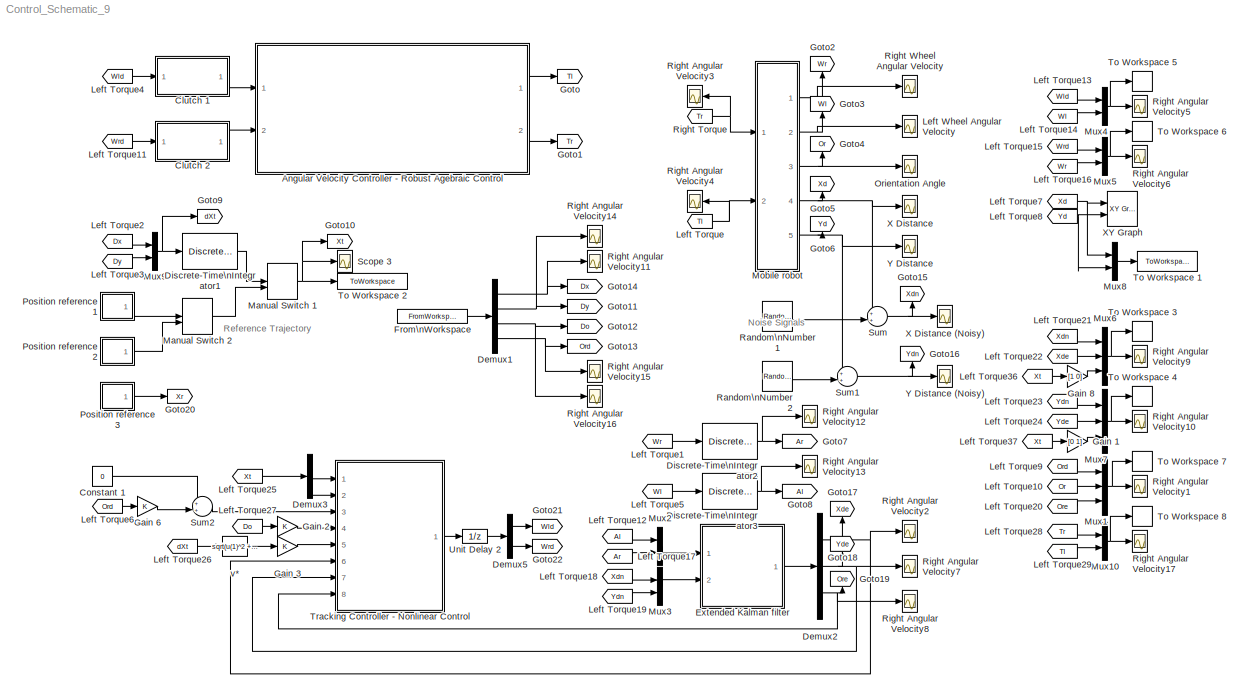
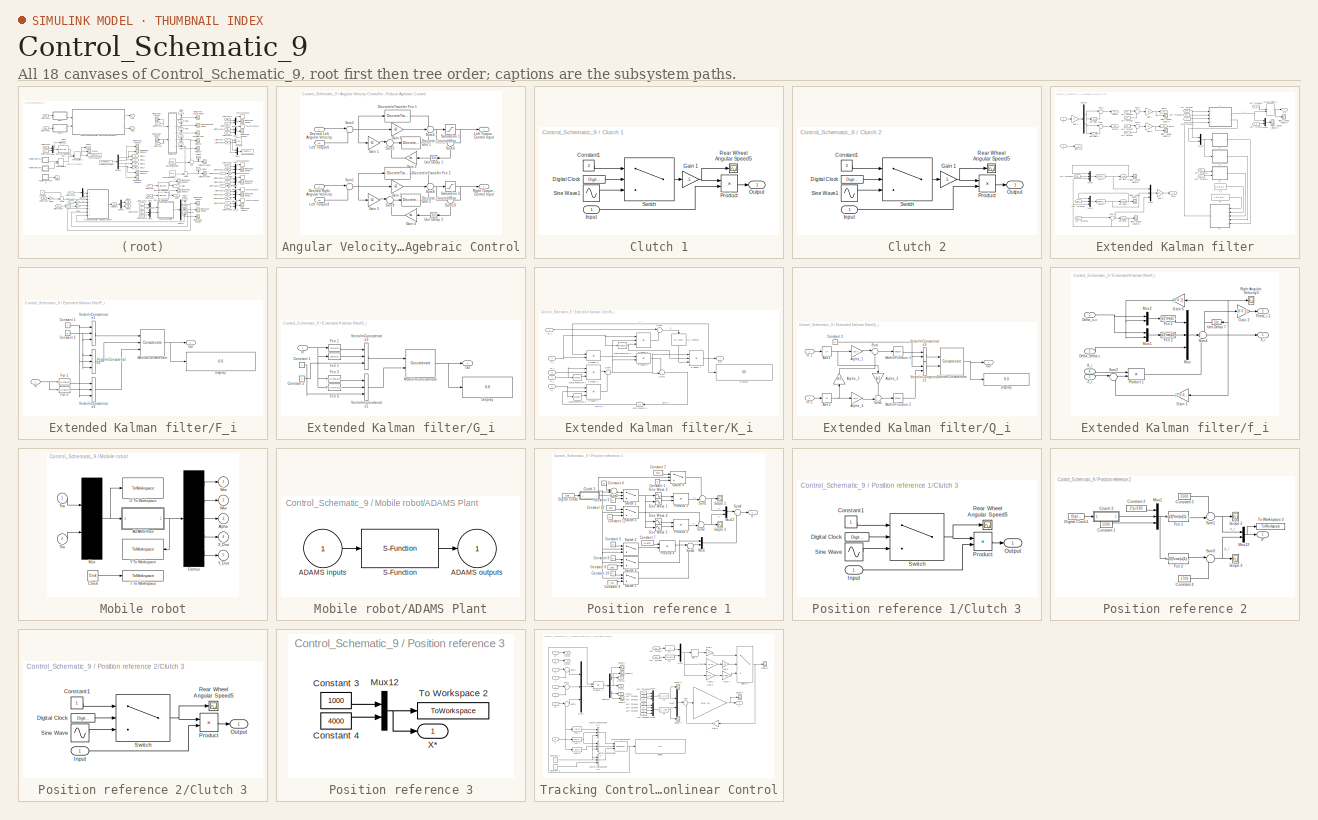
[diagram: thumbnail index - all 18 canvases of the model, root first then tree order]
MODEL Control_Schematic_9
KIND model
BLOCK [SubSystem] Angular Velocity Controller - Robust Agebraic Control
  Ports = [2, 2]
  RequestExecContextInheritance = off
  SID = 5188
BLOCK [Inport] Angular Velocity Controller - Robust Agebraic Control/Desired Left Angular Velocity
  IconDisplay = Port number
  SID = 5189
BLOCK [Inport] Angular Velocity Controller - Robust Agebraic Control/Desired Right Angular Velocity
  IconDisplay = Port number
  Port = 2
  SID = 5190
BLOCK [DiscreteIntegrator] Angular Velocity Controller - Robust Agebraic Control/Discrete-Time\nIntegrator 1
  ICPrevOutput = DiscIntNeverNeededParam
  ICPrevScaledInput = DiscIntNeverNeededParam
  IntegratorMethod = Integration: Trapezoidal
  Ports = [1, 1]
  SID = 5294
  SampleTime = Ts
BLOCK [DiscreteIntegrator] Angular Velocity Controller - Robust Agebraic Control/Discrete-Time\nIntegrator 2
  ICPrevOutput = DiscIntNeverNeededParam
  ICPrevScaledInput = DiscIntNeverNeededParam
  IntegratorMethod = Integration: Trapezoidal
  Ports = [1, 1]
  SID = 5295
  SampleTime = Ts
BLOCK [DiscreteTransferFcn] Angular Velocity Controller - Robust Agebraic Control/Discrete\nTransfer Fcn 1
  Denominator = [1 -.99]
  InputPortMap = u0
  Numerator = [.3184 .3184]
  Ports = [1, 1]
  SID = 5377
  SampleTime = Ts
BLOCK [DiscreteTransferFcn] Angular Velocity Controller - Robust Agebraic Control/Discrete\nTransfer Fcn 2
  Denominator = [1 -.99]
  InputPortMap = u0
  Numerator = [.3184 .3184]
  Ports = [1, 1]
  SID = 5378
  SampleTime = Ts
BLOCK [Gain] Angular Velocity Controller - Robust Agebraic Control/Gain 1
  Gain = k2
  OutDataTypeStr = Inherit: Inherit via internal rule
  ParamDataTypeStr = Inherit: Inherit via internal rule
  SID = 5296
  SaturateOnIntegerOverflow = off
BLOCK [Gain] Angular Velocity Controller - Robust Agebraic Control/Gain 2
  Gain = ka
  OutDataTypeStr = Inherit: Inherit via internal rule
  ParamDataTypeStr = Inherit: Inherit via internal rule
  SID = 5297
  SaturateOnIntegerOverflow = off
BLOCK [Gain] Angular Velocity Controller - Robust Agebraic Control/Gain 3
  Gain = k2
  OutDataTypeStr = Inherit: Inherit via internal rule
  ParamDataTypeStr = Inherit: Inherit via internal rule
  SID = 5298
  SaturateOnIntegerOverflow = off
BLOCK [Gain] Angular Velocity Controller - Robust Agebraic Control/Gain 4
  Gain = ka
  OutDataTypeStr = Inherit: Inherit via internal rule
  ParamDataTypeStr = Inherit: Inherit via internal rule
  SID = 5299
  SaturateOnIntegerOverflow = off
BLOCK [Gain] Angular Velocity Controller - Robust Agebraic Control/Gain 5
  Gain = k3
  OutDataTypeStr = Inherit: Inherit via internal rule
  ParamDataTypeStr = Inherit: Inherit via internal rule
  SID = 5300
  SaturateOnIntegerOverflow = off
BLOCK [Gain] Angular Velocity Controller - Robust Agebraic Control/Gain 6
  Gain = k3
  OutDataTypeStr = Inherit: Inherit via internal rule
  ParamDataTypeStr = Inherit: Inherit via internal rule
  SID = 5301
  SaturateOnIntegerOverflow = off
BLOCK [Outport] Angular Velocity Controller - Robust Agebraic Control/Left Torque - Control Input
  IconDisplay = Port number
  SID = 5290
BLOCK [From] Angular Velocity Controller - Robust Agebraic Control/Left Torque4
  GotoTag = Wr
  SID = 5292
  TagVisibility = global
BLOCK [From] Angular Velocity Controller - Robust Agebraic Control/Left Torque6
  GotoTag = Wl
  SID = 5293
  TagVisibility = global
BLOCK [Outport] Angular Velocity Controller - Robust Agebraic Control/Right Torque - Control Input
  IconDisplay = Port number
  Port = 2
  SID = 5291
BLOCK [Saturate] Angular Velocity Controller - Robust Agebraic Control/Saturation 1
  InputPortMap = u0
  LowerLimit = -15
  Ports = [1, 1]
  SID = 5304
  UpperLimit = 15
BLOCK [Saturate] Angular Velocity Controller - Robust Agebraic Control/Saturation 2
  InputPortMap = u0
  LowerLimit = -15
  Ports = [1, 1]
  SID = 5305
  UpperLimit = 15
BLOCK [Sum] Angular Velocity Controller - Robust Agebraic Control/Sum1
  IconShape = round
  InputSameDT = off
  Inputs = |+-
  OutDataTypeStr = Inherit: Inherit via internal rule
  Ports = [2, 1]
  SID = 5307
  SaturateOnIntegerOverflow = off
BLOCK [Sum] Angular Velocity Controller - Robust Agebraic Control/Sum10
  IconShape = round
  InputSameDT = off
  Inputs = -+
  OutDataTypeStr = Inherit: Inherit via internal rule
  Ports = [2, 1]
  SID = 5313
  SaturateOnIntegerOverflow = off
BLOCK [Sum] Angular Velocity Controller - Robust Agebraic Control/Sum2
  IconShape = round
  InputSameDT = off
  Inputs = |+-
  OutDataTypeStr = Inherit: Inherit via internal rule
  Ports = [2, 1]
  SID = 5306
  SaturateOnIntegerOverflow = off
BLOCK [Sum] Angular Velocity Controller - Robust Agebraic Control/Sum4
  IconShape = round
  InputSameDT = off
  Inputs = +++
  OutDataTypeStr = Inherit: Inherit via internal rule
  Ports = [3, 1]
  SID = 5308
  SaturateOnIntegerOverflow = off
BLOCK [Sum] Angular Velocity Controller - Robust Agebraic Control/Sum5
  IconShape = round
  InputSameDT = off
  Inputs = |++
  OutDataTypeStr = Inherit: Inherit via internal rule
  Ports = [2, 1]
  SID = 5309
  SaturateOnIntegerOverflow = off
BLOCK [Sum] Angular Velocity Controller - Robust Agebraic Control/Sum6
  IconShape = round
  InputSameDT = off
  Inputs = -+
  OutDataTypeStr = Inherit: Inherit via internal rule
  Ports = [2, 1]
  SID = 5310
  SaturateOnIntegerOverflow = off
BLOCK [Sum] Angular Velocity Controller - Robust Agebraic Control/Sum8
  IconShape = round
  InputSameDT = off
  Inputs = +++
  OutDataTypeStr = Inherit: Inherit via internal rule
  Ports = [3, 1]
  SID = 5311
  SaturateOnIntegerOverflow = off
BLOCK [Sum] Angular Velocity Controller - Robust Agebraic Control/Sum9
  IconShape = round
  InputSameDT = off
  Inputs = |++
  OutDataTypeStr = Inherit: Inherit via internal rule
  Ports = [2, 1]
  SID = 5312
  SaturateOnIntegerOverflow = off
BLOCK [UnitDelay] Angular Velocity Controller - Robust Agebraic Control/Unit Delay 1
  InputProcessing = Elements as channels (sample based)
  SID = 5314
  SampleTime = -1
BLOCK [UnitDelay] Angular Velocity Controller - Robust Agebraic Control/Unit Delay 2
  InputProcessing = Elements as channels (sample based)
  SID = 5315
  SampleTime = -1
BLOCK [SubSystem] Clutch 1
  Ports = [1, 1]
  RequestExecContextInheritance = off
  SID = 5435
BLOCK [Constant] Clutch 1/Constant1
  SID = 5437
  Value = 2
BLOCK [DigitalClock] Clutch 1/Digital Clock
  SID = 5438
  SampleTime = Ts
BLOCK [Gain] Clutch 1/Gain 1
  Gain = .5
  OutDataTypeStr = Inherit: Inherit via internal rule
  ParamDataTypeStr = Inherit: Inherit via internal rule
  SID = 5439
  SaturateOnIntegerOverflow = off
BLOCK [Inport] Clutch 1/Input
  IconDisplay = Port number
  SID = 5436
BLOCK [Outport] Clutch 1/Output
  IconDisplay = Port number
  SID = 5444
BLOCK [Product] Clutch 1/Product
  InputSameDT = off
  OutDataTypeStr = Inherit: Inherit via internal rule
  Ports = [2, 1]
  RndMeth = Floor
  SID = 5440
  SaturateOnIntegerOverflow = off
BLOCK [Scope] Clutch 1/Rear Wheel Angular Speed5
  Floating = off
  LimitDataPoints = off
  NumInputPorts = 1
  Ports = [1]
  SID = 5441
  SaveName = ScopeData5
  ShowLegends = off
  YMax = 2
  YMin = 0
  ZoomMode = xonly
BLOCK [Sin] Clutch 1/Sine Wave1
  Bias = 1
  Frequency = (pi/5)
  Phase = -pi/2
  Ports = [0, 1]
  SID = 5442
  SampleTime = Ts
BLOCK [Switch] Clutch 1/Switch
  InputSameDT = off
  SID = 5443
  SaturateOnIntegerOverflow = off
  Threshold = 5
BLOCK [SubSystem] Clutch 2
  Ports = [1, 1]
  RequestExecContextInheritance = off
  SID = 5471
BLOCK [Constant] Clutch 2/Constant1
  SID = 5473
  Value = 2
BLOCK [DigitalClock] Clutch 2/Digital Clock
  SID = 5474
  SampleTime = Ts
BLOCK [Gain] Clutch 2/Gain 1
  Gain = .5
  OutDataTypeStr = Inherit: Inherit via internal rule
  ParamDataTypeStr = Inherit: Inherit via internal rule
  SID = 5475
  SaturateOnIntegerOverflow = off
BLOCK [Inport] Clutch 2/Input
  IconDisplay = Port number
  SID = 5472
BLOCK [Outport] Clutch 2/Output
  IconDisplay = Port number
  SID = 5480
BLOCK [Product] Clutch 2/Product
  InputSameDT = off
  OutDataTypeStr = Inherit: Inherit via internal rule
  Ports = [2, 1]
  RndMeth = Floor
  SID = 5476
  SaturateOnIntegerOverflow = off
BLOCK [Scope] Clutch 2/Rear Wheel Angular Speed5
  Floating = off
  LimitDataPoints = off
  NumInputPorts = 1
  Ports = [1]
  SID = 5477
  SaveName = ScopeData5
  ShowLegends = off
  YMax = 2
  YMin = 0
  ZoomMode = xonly
BLOCK [Sin] Clutch 2/Sine Wave1
  Bias = 1
  Frequency = (pi/5)
  Phase = -pi/2
  Ports = [0, 1]
  SID = 5478
  SampleTime = Ts
BLOCK [Switch] Clutch 2/Switch
  InputSameDT = off
  SID = 5479
  SaturateOnIntegerOverflow = off
  Threshold = 5
BLOCK [Constant] Constant 1
  SID = 5398
  Value = 0
BLOCK [Demux] Demux1
  DisplayOption = bar
  Ports = [1, 4]
  SID = 4476
BLOCK [Demux] Demux2
  DisplayOption = bar
  Outputs = 3
  Ports = [1, 3]
  SID = 1900
BLOCK [Demux] Demux3
  DisplayOption = bar
  Outputs = 2
  Ports = [1, 2]
  SID = 5132
BLOCK [Demux] Demux5
  DisplayOption = bar
  Outputs = 2
  Ports = [1, 2]
  SID = 4855
BLOCK [DiscreteIntegrator] Discrete-Time\nIntegrator1
  ICPrevOutput = DiscIntNeverNeededParam
  ICPrevScaledInput = DiscIntNeverNeededParam
  InitialCondition = [x_0,y_0]'
  IntegratorMethod = Integration: Trapezoidal
  Ports = [1, 1]
  SID = 4482
  SampleTime = Ts
  gainval = 1
BLOCK [DiscreteIntegrator] Discrete-Time\nIntegrator2
  ICPrevOutput = DiscIntNeverNeededParam
  ICPrevScaledInput = DiscIntNeverNeededParam
  IntegratorMethod = Integration: Trapezoidal
  Ports = [1, 1]
  SID = 855
  SampleTime = Ts
  gainval = 1
BLOCK [DiscreteIntegrator] Discrete-Time\nIntegrator3
  ICPrevOutput = DiscIntNeverNeededParam
  ICPrevScaledInput = DiscIntNeverNeededParam
  IntegratorMethod = Integration: Trapezoidal
  Ports = [1, 1]
  SID = 778
  SampleTime = Ts
  gainval = 1
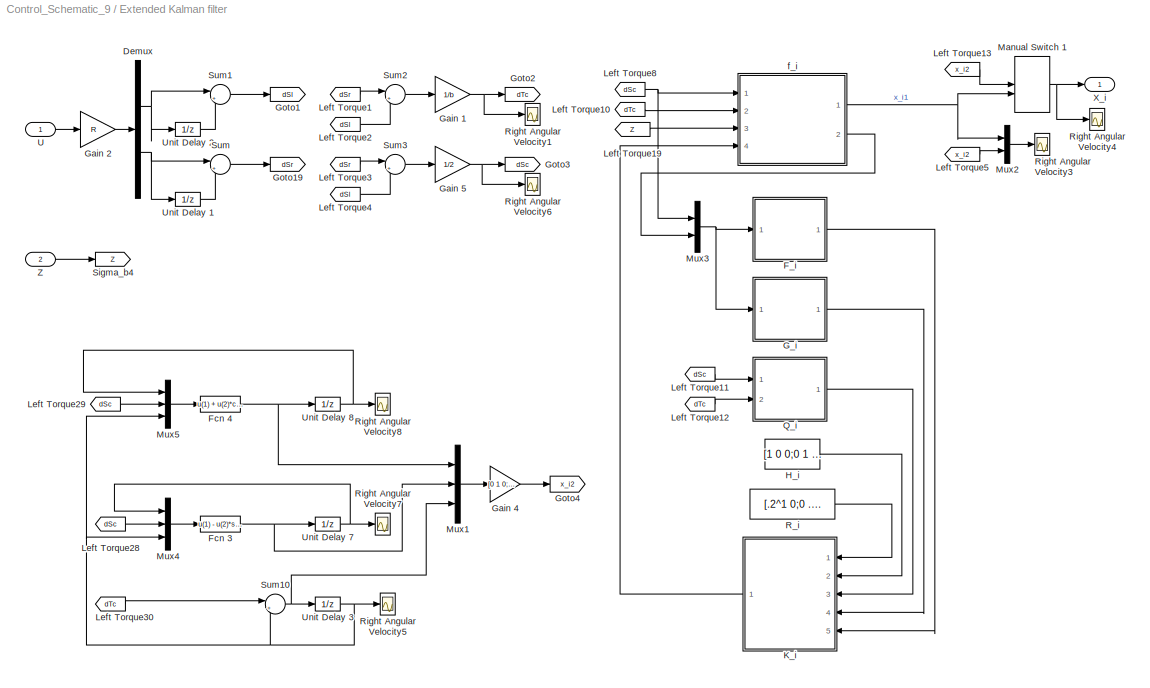
BLOCK [SubSystem] Extended Kalman filter
  Ports = [2, 1]
  RequestExecContextInheritance = off
  SID = 1644
BLOCK [Demux] Extended Kalman filter/Demux
  DisplayOption = bar
  Outputs = 2
  Ports = [1, 2]
  SID = 1660
BLOCK [SubSystem] Extended Kalman filter/F_i
  Ports = [1, 1]
  RequestExecContextInheritance = off
  SID = 1707
BLOCK [Constant] Extended Kalman filter/F_i/Constant 1
  SID = 1711
BLOCK [Constant] Extended Kalman filter/F_i/Constant 2
  SID = 1713
  Value = 0
BLOCK [Display] Extended Kalman filter/F_i/Display
  Decimation = 1
  Ports = [1]
  SID = 1905
BLOCK [Fcn] Extended Kalman filter/F_i/Fcn 1
  Expr = -u(1)*cos(u(2))
  SID = 1719
BLOCK [Fcn] Extended Kalman filter/F_i/Fcn 2
  Expr = -u(1)*sin(u(2))
  SID = 1720
BLOCK [Inport] Extended Kalman filter/F_i/In
  IconDisplay = Port number
  SID = 1708
BLOCK [Concatenate] Extended Kalman filter/F_i/Matrix\nConcatenate
  ConcatenateDimension = 2
  Mode = Multidimensional array
  NumInputs = 3
  Ports = [3, 1]
  SID = 1715
BLOCK [Outport] Extended Kalman filter/F_i/Out
  IconDisplay = Port number
  SID = 1709
BLOCK [Concatenate] Extended Kalman filter/F_i/Vector\nConcatenate1
  NumInputs = 3
  Ports = [3, 1]
  SID = 1714
BLOCK [Concatenate] Extended Kalman filter/F_i/Vector\nConcatenate2
  NumInputs = 3
  Ports = [3, 1]
  SID = 1717
BLOCK [Concatenate] Extended Kalman filter/F_i/Vector\nConcatenate3
  NumInputs = 3
  Ports = [3, 1]
  SID = 1718
BLOCK [Fcn] Extended Kalman filter/Fcn 3
  Expr = u(1) - u(2)*sin(u(3))
  SID = 1935
BLOCK [Fcn] Extended Kalman filter/Fcn 4
  Expr = u(1) + u(2)*cos(u(3))
  SID = 1940
BLOCK [SubSystem] Extended Kalman filter/G_i
  Ports = [1, 1]
  RequestExecContextInheritance = off
  SID = 1721
BLOCK [Constant] Extended Kalman filter/G_i/Constant 1
  SID = 1723
BLOCK [Constant] Extended Kalman filter/G_i/Constant 2
  SID = 1724
  Value = 0
BLOCK [Display] Extended Kalman filter/G_i/Display
  Decimation = 1
  Ports = [1]
  SID = 1906
BLOCK [Fcn] Extended Kalman filter/G_i/Fcn 1
  Expr = -sin(u(2))
  SID = 1725
BLOCK [Fcn] Extended Kalman filter/G_i/Fcn 2
  Expr = cos(u(2))
  SID = 1726
BLOCK [Fcn] Extended Kalman filter/G_i/Fcn 3
  Expr = -u(1)*cos(u(2))
  SID = 1947
BLOCK [Fcn] Extended Kalman filter/G_i/Fcn 4
  Expr = -u(1)*sin(u(2))
  SID = 1948
BLOCK [Inport] Extended Kalman filter/G_i/In
  IconDisplay = Port number
  SID = 1722
BLOCK [Concatenate] Extended Kalman filter/G_i/Matrix\nConcatenate
  ConcatenateDimension = 2
  Mode = Multidimensional array
  Ports = [2, 1]
  SID = 1727
BLOCK [Outport] Extended Kalman filter/G_i/Out
  IconDisplay = Port number
  SID = 1731
BLOCK [Concatenate] Extended Kalman filter/G_i/Vector\nConcatenate1
  NumInputs = 3
  Ports = [3, 1]
  SID = 1732
BLOCK [Concatenate] Extended Kalman filter/G_i/Vector\nConcatenate3
  NumInputs = 3
  Ports = [3, 1]
  SID = 1730
BLOCK [Gain] Extended Kalman filter/Gain 1
  Gain = 1/b
  OutDataTypeStr = Inherit: Inherit via internal rule
  ParamDataTypeStr = Inherit: Inherit via internal rule
  SID = 1674
  SaturateOnIntegerOverflow = off
BLOCK [Gain] Extended Kalman filter/Gain 2
  Gain = R
  OutDataTypeStr = Inherit: Inherit via internal rule
  ParamDataTypeStr = Inherit: Inherit via internal rule
  SID = 1676
  SaturateOnIntegerOverflow = off
BLOCK [Gain] Extended Kalman filter/Gain 4
  Gain = [0 1 0;1 0 0;0 0 1]
  Multiplication = Matrix(K*u)
  OutDataTypeStr = Inherit: Inherit via internal rule
  ParamDataTypeStr = Inherit: Inherit via internal rule
  SID = 2051
  SaturateOnIntegerOverflow = off
BLOCK [Gain] Extended Kalman filter/Gain 5
  Gain = 1/2
  OutDataTypeStr = Inherit: Inherit via internal rule
  ParamDataTypeStr = Inherit: Inherit via internal rule
  SID = 1945
  SaturateOnIntegerOverflow = off
BLOCK [Goto] Extended Kalman filter/Goto1
  GotoTag = dSl
  SID = 1670
BLOCK [Goto] Extended Kalman filter/Goto19
  GotoTag = dSr
  SID = 1669
BLOCK [Goto] Extended Kalman filter/Goto2
  GotoTag = dTc
  SID = 1675
BLOCK [Goto] Extended Kalman filter/Goto3
  GotoTag = dSc
  SID = 1677
BLOCK [Goto] Extended Kalman filter/Goto4
  GotoTag = x_i2
  SID = 2050
BLOCK [Constant] Extended Kalman filter/H_i
  SID = 2157
  Value = [1 0 0;0 1 0]
BLOCK [SubSystem] Extended Kalman filter/K_i
  Ports = [5, 1]
  RequestExecContextInheritance = off
  SID = 2162
BLOCK [Reference] Extended Kalman filter/K_i/ LU Inverse  REF=dspinverses/ LU Inverse
  Ports = [1, 1]
  SID = 2212
  SourceBlock = dspinverses/ LU Inverse
  SourceType = LU Inverse
BLOCK [Display] Extended Kalman filter/K_i/Display
  Decimation = 1
  Ports = [1]
  SID = 2166
BLOCK [Inport] Extended Kalman filter/K_i/F_i
  IconDisplay = Port number
  Port = 5
  SID = 2195
BLOCK [Inport] Extended Kalman filter/K_i/G_i
  IconDisplay = Port number
  Port = 4
  SID = 2189
BLOCK [Inport] Extended Kalman filter/K_i/H_i
  IconDisplay = Port number
  Port = 2
  SID = 2186
BLOCK [Math] Extended Kalman filter/K_i/Math\nFunction 1
  Operator = transpose
  Ports = [1, 1]
  SID = 2197
BLOCK [Math] Extended Kalman filter/K_i/Math\nFunction 2
  Operator = transpose
  Ports = [1, 1]
  SID = 2199
BLOCK [Math] Extended Kalman filter/K_i/Math\nFunction 3
  Operator = transpose
  Ports = [1, 1]
  SID = 2205
BLOCK [Outport] Extended Kalman filter/K_i/Out
  IconDisplay = Port number
  SID = 2173
BLOCK [Product] Extended Kalman filter/K_i/Product 1
  InputSameDT = off
  Inputs = 3
  Multiplication = Matrix(*)
  OutDataTypeStr = Inherit: Inherit via internal rule
  Ports = [3, 1]
  RndMeth = Floor
  SID = 2196
  SaturateOnIntegerOverflow = off
BLOCK [Product] Extended Kalman filter/K_i/Product 2
  InputSameDT = off
  Inputs = 3
  Multiplication = Matrix(*)
  OutDataTypeStr = Inherit: Inherit via internal rule
  Ports = [3, 1]
  RndMeth = Floor
  SID = 2198
  SaturateOnIntegerOverflow = off
BLOCK [Product] Extended Kalman filter/K_i/Product 3
  InputSameDT = off
  Multiplication = Matrix(*)
  OutDataTypeStr = Inherit: Inherit via internal rule
  Ports = [2, 1]
  RndMeth = Floor
  SID = 2201
  SaturateOnIntegerOverflow = off
BLOCK [Product] Extended Kalman filter/K_i/Product 4
  InputSameDT = off
  Multiplication = Matrix(*)
  OutDataTypeStr = Inherit: Inherit via internal rule
  Ports = [2, 1]
  RndMeth = Floor
  SID = 2203
  SaturateOnIntegerOverflow = off
BLOCK [Product] Extended Kalman filter/K_i/Product 5
  InputSameDT = off
  Inputs = 3
  Multiplication = Matrix(*)
  OutDataTypeStr = Inherit: Inherit via internal rule
  Ports = [3, 1]
  RndMeth = Floor
  SID = 2204
  SaturateOnIntegerOverflow = off
BLOCK [Product] Extended Kalman filter/K_i/Product 7
  InputSameDT = off
  Inputs = 3
  Multiplication = Matrix(*)
  OutDataTypeStr = Inherit: Inherit via internal rule
  Ports = [3, 1]
  RndMeth = Floor
  SID = 2215
  SaturateOnIntegerOverflow = off
BLOCK [Inport] Extended Kalman filter/K_i/Q_i
  IconDisplay = Port number
  Port = 3
  SID = 2187
BLOCK [Inport] Extended Kalman filter/K_i/R_i
  IconDisplay = Port number
  SID = 2163
BLOCK [Sum] Extended Kalman filter/K_i/Sum1
  IconShape = round
  InputSameDT = off
  Inputs = -+|
  OutDataTypeStr = Inherit: Inherit via internal rule
  Ports = [2, 1]
  SID = 2202
  SaturateOnIntegerOverflow = off
BLOCK [Sum] Extended Kalman filter/K_i/Sum2
  IconShape = round
  InputSameDT = off
  Inputs = |++
  OutDataTypeStr = Inherit: Inherit via internal rule
  Ports = [2, 1]
  SID = 2206
  SaturateOnIntegerOverflow = off
BLOCK [Sum] Extended Kalman filter/K_i/Sum3
  IconShape = round
  InputSameDT = off
  Inputs = |++
  OutDataTypeStr = Inherit: Inherit via internal rule
  Ports = [2, 1]
  SID = 2200
  SaturateOnIntegerOverflow = off
BLOCK [UnitDelay] Extended Kalman filter/K_i/Unit Delay 4
  InitialCondition = [1 0 0;0 1 0;0 0 1]
  InputProcessing = Elements as channels (sample based)
  SID = 2161
  SampleTime = -1
BLOCK [From] Extended Kalman filter/Left Torque1
  GotoTag = dSr
  SID = 1671
BLOCK [From] Extended Kalman filter/Left Torque10
  GotoTag = dTc
  SID = 2023
BLOCK [From] Extended Kalman filter/Left Torque11
  GotoTag = dSc
  SID = 2042
BLOCK [From] Extended Kalman filter/Left Torque12
  GotoTag = dTc
  SID = 2043
BLOCK [From] Extended Kalman filter/Left Torque13
  GotoTag = x_i2
  SID = 2055
BLOCK [From] Extended Kalman filter/Left Torque19
  GotoTag = Z
  SID = 1855
BLOCK [From] Extended Kalman filter/Left Torque2
  GotoTag = dSl
  SID = 1672
BLOCK [From] Extended Kalman filter/Left Torque28
  GotoTag = dSc
  SID = 1939
BLOCK [From] Extended Kalman filter/Left Torque29
  GotoTag = dSc
  SID = 1944
BLOCK [From] Extended Kalman filter/Left Torque3
  GotoTag = dSr
  SID = 1678
BLOCK [From] Extended Kalman filter/Left Torque30
  GotoTag = dTc
  SID = 1920
BLOCK [From] Extended Kalman filter/Left Torque4
  GotoTag = dSl
  SID = 1679
BLOCK [From] Extended Kalman filter/Left Torque5
  GotoTag = x_i2
  SID = 2160
BLOCK [From] Extended Kalman filter/Left Torque8
  GotoTag = dSc
  SID = 1693
BLOCK [ManualSwitch] Extended Kalman filter/Manual Switch 1
  CurrentSetting = 0
  SID = 2054
BLOCK [Mux] Extended Kalman filter/Mux1
  DisplayOption = bar
  Inputs = 3
  Ports = [3, 1]
  SID = 2049
BLOCK [Mux] Extended Kalman filter/Mux2
  DisplayOption = bar
  Inputs = 2
  Ports = [2, 1]
  SID = 2070
BLOCK [Mux] Extended Kalman filter/Mux3
  DisplayOption = bar
  Inputs = 2
  Ports = [2, 1]
  SID = 1704
BLOCK [Mux] Extended Kalman filter/Mux4
  DisplayOption = bar
  Inputs = 3
  Ports = [3, 1]
  SID = 1938
BLOCK [Mux] Extended Kalman filter/Mux5
  DisplayOption = bar
  Inputs = 3
  Ports = [3, 1]
  SID = 1941
BLOCK [SubSystem] Extended Kalman filter/Q_i
  Ports = [2, 1]
  RequestExecContextInheritance = off
  SID = 1736
BLOCK [Abs] Extended Kalman filter/Q_i/Abs 2
  SID = 2047
  SaturateOnIntegerOverflow = off
BLOCK [Abs] Extended Kalman filter/Q_i/Abs 3
  SID = 2048
  SaturateOnIntegerOverflow = off
BLOCK [Gain] Extended Kalman filter/Q_i/Alpha_1
  Gain = 2e-3
  OutDataTypeStr = Inherit: Inherit via internal rule
  ParamDataTypeStr = Inherit: Inherit via internal rule
  SID = 2044
  SaturateOnIntegerOverflow = off
BLOCK [Gain] Extended Kalman filter/Q_i/Alpha_2
  Gain = 1e-2
  OutDataTypeStr = Inherit: Inherit via internal rule
  ParamDataTypeStr = Inherit: Inherit via internal rule
  SID = 2045
  SaturateOnIntegerOverflow = off
BLOCK [Gain] Extended Kalman filter/Q_i/Alpha_3
  Gain = 1e-2
  OutDataTypeStr = Inherit: Inherit via internal rule
  ParamDataTypeStr = Inherit: Inherit via internal rule
  SID = 2155
  SaturateOnIntegerOverflow = off
BLOCK [Gain] Extended Kalman filter/Q_i/Alpha_4
  Gain = 1e-3
  OutDataTypeStr = Inherit: Inherit via internal rule
  ParamDataTypeStr = Inherit: Inherit via internal rule
  SID = 2154
  SaturateOnIntegerOverflow = off
BLOCK [Constant] Extended Kalman filter/Q_i/Constant 2
  SID = 2149
  Value = 0
BLOCK [Display] Extended Kalman filter/Q_i/Display
  Decimation = 1
  Ports = [1]
  SID = 1909
BLOCK [Inport] Extended Kalman filter/Q_i/In 1
  IconDisplay = Port number
  SID = 2040
BLOCK [Inport] Extended Kalman filter/Q_i/In 2
  IconDisplay = Port number
  Port = 2
  SID = 2041
BLOCK [Math] Extended Kalman filter/Q_i/Math\nFunction 1
  Operator = square
  Ports = [1, 1]
  SID = 2152
BLOCK [Math] Extended Kalman filter/Q_i/Math\nFunction 2
  Operator = square
  Ports = [1, 1]
  SID = 2156
BLOCK [Concatenate] Extended Kalman filter/Q_i/Matrix\nConcatenate
  ConcatenateDimension = 2
  Mode = Multidimensional array
  Ports = [2, 1]
  SID = 1744
BLOCK [Outport] Extended Kalman filter/Q_i/Out
  IconDisplay = Port number
  SID = 1748
BLOCK [Sum] Extended Kalman filter/Q_i/Sum
  IconShape = round
  InputSameDT = off
  Inputs = |++
  OutDataTypeStr = Inherit: Inherit via internal rule
  Ports = [2, 1]
  SID = 2151
  SaturateOnIntegerOverflow = off
BLOCK [Sum] Extended Kalman filter/Q_i/Sum1
  IconShape = round
  InputSameDT = off
  Inputs = ++|
  OutDataTypeStr = Inherit: Inherit via internal rule
  Ports = [2, 1]
  SID = 2153
  SaturateOnIntegerOverflow = off
BLOCK [Concatenate] Extended Kalman filter/Q_i/Vector\nConcatenate1
  Ports = [2, 1]
  SID = 1745
BLOCK [Concatenate] Extended Kalman filter/Q_i/Vector\nConcatenate3
  Ports = [2, 1]
  SID = 1747
BLOCK [Constant] Extended Kalman filter/R_i
  SID = 2159
  Value = [.2^1 0;0 .2^1]
BLOCK [Scope] Extended Kalman filter/Right Angular Velocity1
  Floating = off
  LimitDataPoints = off
  NumInputPorts = 1
  Ports = [1]
  SID = 1682
  SaveName = ScopeData23
  ShowLegends = off
  YMax = 1
  YMin = -1
  ZoomMode = xonly
BLOCK [Scope] Extended Kalman filter/Right Angular Velocity3
  Floating = off
  LimitDataPoints = off
  NumInputPorts = 1
  Ports = [1]
  SID = 2071
  SaveName = ScopeData29
  ShowLegends = off
  YMax = 2
  YMin = -1
BLOCK [Scope] Extended Kalman filter/Right Angular Velocity4
  Floating = off
  LimitDataPoints = off
  NumInputPorts = 1
  Ports = [1]
  SID = 1913
  SaveName = ScopeData31
  ShowLegends = off
  YMax = 1
  YMin = -1
  ZoomMode = yonly
BLOCK [Scope] Extended Kalman filter/Right Angular Velocity5
  Floating = off
  LimitDataPoints = off
  NumInputPorts = 1
  Ports = [1]
  SID = 1932
  SaveName = ScopeData32
  ShowLegends = off
  YMax = 3
  YMin = -1
  ZoomMode = yonly
BLOCK [Scope] Extended Kalman filter/Right Angular Velocity6
  Floating = off
  LimitDataPoints = off
  NumInputPorts = 1
  Ports = [1]
  SID = 1681
  SaveName = ScopeData22
  ShowLegends = off
  YMax = 1
  YMin = -1
  ZoomMode = xonly
BLOCK [Scope] Extended Kalman filter/Right Angular Velocity7
  Floating = off
  LimitDataPoints = off
  NumInputPorts = 1
  Ports = [1]
  SID = 1937
  SaveName = ScopeData33
  ShowLegends = off
  YMax = 2510
  YMin = 2490
  ZoomMode = yonly
BLOCK [Scope] Extended Kalman filter/Right Angular Velocity8
  Floating = off
  LimitDataPoints = off
  NumInputPorts = 1
  Ports = [1]
  SID = 1943
  SaveName = ScopeData34
  ShowLegends = off
  YMax = 500
  YMin = 100
BLOCK [Goto] Extended Kalman filter/Sigma_b4
  GotoTag = Z
  SID = 2135
BLOCK [Sum] Extended Kalman filter/Sum
  IconShape = round
  InputSameDT = off
  Inputs = |+-
  OutDataTypeStr = Inherit: Inherit via internal rule
  Ports = [2, 1]
  SID = 1661
  SaturateOnIntegerOverflow = off
BLOCK [Sum] Extended Kalman filter/Sum1
  IconShape = round
  InputSameDT = off
  Inputs = |+-
  OutDataTypeStr = Inherit: Inherit via internal rule
  Ports = [2, 1]
  SID = 1667
  SaturateOnIntegerOverflow = off
BLOCK [Sum] Extended Kalman filter/Sum10
  IconShape = round
  InputSameDT = off
  Inputs = |++
  OutDataTypeStr = Inherit: Inherit via internal rule
  Ports = [2, 1]
  SID = 1934
  SaturateOnIntegerOverflow = off
BLOCK [Sum] Extended Kalman filter/Sum2
  IconShape = round
  InputSameDT = off
  Inputs = |+-
  OutDataTypeStr = Inherit: Inherit via internal rule
  Ports = [2, 1]
  SID = 1673
  SaturateOnIntegerOverflow = off
BLOCK [Sum] Extended Kalman filter/Sum3
  IconShape = round
  InputSameDT = off
  Inputs = |++
  OutDataTypeStr = Inherit: Inherit via internal rule
  Ports = [2, 1]
  SID = 1680
  SaturateOnIntegerOverflow = off
BLOCK [Inport] Extended Kalman filter/U
  IconDisplay = Port number
  SID = 1645
BLOCK [UnitDelay] Extended Kalman filter/Unit Delay 1
  InputProcessing = Elements as channels (sample based)
  SID = 1659
  SampleTime = -1
BLOCK [UnitDelay] Extended Kalman filter/Unit Delay 2
  InputProcessing = Elements as channels (sample based)
  SID = 1668
  SampleTime = -1
BLOCK [UnitDelay] Extended Kalman filter/Unit Delay 3
  InputProcessing = Elements as channels (sample based)
  SID = 1933
  SampleTime = -1
BLOCK [UnitDelay] Extended Kalman filter/Unit Delay 7
  InitialCondition = 2500
  InputProcessing = Elements as channels (sample based)
  SID = 1936
  SampleTime = -1
BLOCK [UnitDelay] Extended Kalman filter/Unit Delay 8
  InitialCondition = 200
  InputProcessing = Elements as channels (sample based)
  SID = 1942
  SampleTime = -1
BLOCK [Outport] Extended Kalman filter/X_i
  IconDisplay = Port number
  SID = 1647
BLOCK [Inport] Extended Kalman filter/Z
  IconDisplay = Port number
  Port = 2
  SID = 1646
BLOCK [SubSystem] Extended Kalman filter/f_i
  Ports = [4, 2]
  RequestExecContextInheritance = off
  SID = 1969
BLOCK [Inport] Extended Kalman filter/f_i/Delta_s,c
  IconDisplay = Port number
  SID = 1970
BLOCK [Inport] Extended Kalman filter/f_i/Delta_theta,c
  IconDisplay = Port number
  Port = 2
  SID = 2022
BLOCK [Fcn] Extended Kalman filter/f_i/Fcn 1
  Expr = -u(1)*sin(u(2))
  SID = 1696
BLOCK [Fcn] Extended Kalman filter/f_i/Fcn 2
  Expr = u(1)*cos(u(2))
  SID = 1698
BLOCK [Gain] Extended Kalman filter/f_i/Gain 1
  Gain = [1 0 0;0 1 0]
  Multiplication = Matrix(K*u)
  OutDataTypeStr = Inherit: Inherit via internal rule
  ParamDataTypeStr = Inherit: Inherit via internal rule
  SID = 2136
  SaturateOnIntegerOverflow = off
BLOCK [Gain] Extended Kalman filter/f_i/Gain 2
  Gain = [0 0 1]
  Multiplication = Matrix(K*u)
  OutDataTypeStr = Inherit: Inherit via internal rule
  ParamDataTypeStr = Inherit: Inherit via internal rule
  SID = 2144
  SaturateOnIntegerOverflow = off
BLOCK [Gain] Extended Kalman filter/f_i/Gain 6
  Gain = [0 0 1]
  Multiplication = Matrix(K*u)
  OutDataTypeStr = Inherit: Inherit via internal rule
  ParamDataTypeStr = Inherit: Inherit via internal rule
  SID = 1946
  SaturateOnIntegerOverflow = off
BLOCK [Inport] Extended Kalman filter/f_i/K_i
  IconDisplay = Port number
  Port = 4
  SID = 2139
BLOCK [Mux] Extended Kalman filter/f_i/Mux
  DisplayOption = bar
  Inputs = 3
  Ports = [3, 1]
  SID = 1689
BLOCK [Mux] Extended Kalman filter/f_i/Mux1
  DisplayOption = bar
  Inputs = 2
  Ports = [2, 1]
  SID = 1691
BLOCK [Mux] Extended Kalman filter/f_i/Mux2
  DisplayOption = bar
  Inputs = 2
  Ports = [2, 1]
  SID = 1695
BLOCK [Product] Extended Kalman filter/f_i/Product 1
  InputSameDT = off
  Multiplication = Matrix(*)
  OutDataTypeStr = Inherit: Inherit via internal rule
  Ports = [2, 1]
  RndMeth = Floor
  SID = 2140
  SaturateOnIntegerOverflow = off
BLOCK [Scope] Extended Kalman filter/f_i/Right Angular Velocity3
  Floating = off
  LimitDataPoints = off
  NumInputPorts = 1
  Ports = [1]
  SID = 1950
  SaveName = ScopeData30
  ShowLegends = off
  YMax = 1
  YMin = -1
  ZoomMode = yonly
BLOCK [Sum] Extended Kalman filter/f_i/Sum2
  IconShape = round
  InputSameDT = off
  Inputs = |+-
  OutDataTypeStr = Inherit: Inherit via internal rule
  Ports = [2, 1]
  SID = 2138
  SaturateOnIntegerOverflow = off
BLOCK [Sum] Extended Kalman filter/f_i/Sum4
  IconShape = round
  InputSameDT = off
  Inputs = +++
  OutDataTypeStr = Inherit: Inherit via internal rule
  Ports = [3, 1]
  SID = 1699
  SaturateOnIntegerOverflow = off
BLOCK [Outport] Extended Kalman filter/f_i/Theta_i-1
  IconDisplay = Port number
  Port = 2
  SID = 2143
BLOCK [UnitDelay] Extended Kalman filter/f_i/Unit Delay 7
  InitialCondition = [2500 200 0]'
  InputProcessing = Elements as channels (sample based)
  SID = 2134
  SampleTime = -1
BLOCK [Outport] Extended Kalman filter/f_i/X_i
  IconDisplay = Port number
  SID = 1973
BLOCK [Inport] Extended Kalman filter/f_i/Z_i
  IconDisplay = Port number
  Port = 3
  SID = 1972
BLOCK [FromWorkspace] From\nWorkspace
  OutputAfterFinalValue = Holding final value
  SID = 4477
  SampleTime = Ts
  VariableName = desired_path
  ZeroCross = on
BLOCK [Gain] Gain 1
  Gain = [0 1]
  Multiplication = Matrix(K*u)
  OutDataTypeStr = Inherit: Inherit via internal rule
  ParamDataTypeStr = Inherit: Inherit via internal rule
  SID = 3930
  SaturateOnIntegerOverflow = off
BLOCK [Gain] Gain 2
  OutDataTypeStr = Inherit: Inherit via internal rule
  ParamDataTypeStr = Inherit: Inherit via internal rule
  SID = 5395
  SaturateOnIntegerOverflow = off
BLOCK [Gain] Gain 3
  OutDataTypeStr = Inherit: Inherit via internal rule
  ParamDataTypeStr = Inherit: Inherit via internal rule
  SID = 5396
  SaturateOnIntegerOverflow = off
BLOCK [Gain] Gain 6
  OutDataTypeStr = Inherit: Inherit via internal rule
  ParamDataTypeStr = Inherit: Inherit via internal rule
  SID = 5394
  SaturateOnIntegerOverflow = off
BLOCK [Gain] Gain 8
  Gain = [1 0]
  Multiplication = Matrix(K*u)
  OutDataTypeStr = Inherit: Inherit via internal rule
  ParamDataTypeStr = Inherit: Inherit via internal rule
  SID = 3929
  SaturateOnIntegerOverflow = off
BLOCK [Goto] Goto
  GotoTag = Tl
  SID = 28
  TagVisibility = global
BLOCK [Goto] Goto1
  GotoTag = Tr
  SID = 181
  TagVisibility = global
BLOCK [Goto] Goto10
  GotoTag = Xt
  SID = 4379
  TagVisibility = global
BLOCK [Goto] Goto11
  GotoTag = Dy
  SID = 4478
  TagVisibility = global
BLOCK [Goto] Goto12
  GotoTag = Do
  SID = 4479
  TagVisibility = global
BLOCK [Goto] Goto13
  GotoTag = Ord
  SID = 4480
  TagVisibility = global
BLOCK [Goto] Goto14
  GotoTag = Dx
  SID = 4481
  TagVisibility = global
BLOCK [Goto] Goto15
  GotoTag = Xdn
  SID = 1590
  TagVisibility = global
BLOCK [Goto] Goto16
  GotoTag = Ydn
  SID = 1591
  TagVisibility = global
BLOCK [Goto] Goto17
  GotoTag = Xde
  SID = 1992
  TagVisibility = global
BLOCK [Goto] Goto18
  GotoTag = Yde
  SID = 1993
  TagVisibility = global
BLOCK [Goto] Goto19
  GotoTag = Ore
  SID = 1994
  TagVisibility = global
BLOCK [Goto] Goto2
  GotoTag = Wr
  SID = 30
  TagVisibility = global
BLOCK [Goto] Goto20
  GotoTag = Xr
  SID = 4717
  TagVisibility = global
BLOCK [Goto] Goto21
  GotoTag = Wld
  SID = 4727
  TagVisibility = global
BLOCK [Goto] Goto22
  GotoTag = Wrd
  SID = 4728
  TagVisibility = global
BLOCK [Goto] Goto3
  GotoTag = Wl
  SID = 31
  TagVisibility = global
BLOCK [Goto] Goto4
  GotoTag = Or
  SID = 32
  TagVisibility = global
BLOCK [Goto] Goto5
  GotoTag = Xd
  SID = 33
  TagVisibility = global
BLOCK [Goto] Goto6
  GotoTag = Yd
  SID = 34
  TagVisibility = global
BLOCK [Goto] Goto7
  GotoTag = Ar
  SID = 856
  TagVisibility = global
BLOCK [Goto] Goto8
  GotoTag = Al
  SID = 780
  TagVisibility = global
BLOCK [Goto] Goto9
  GotoTag = dXt
  SID = 5133
  TagVisibility = global
BLOCK [From] Left Torque
  GotoTag = Tl
  SID = 25
  TagVisibility = global
BLOCK [From] Left Torque1
  GotoTag = Wr
  SID = 955
  TagVisibility = global
BLOCK [From] Left Torque10
  GotoTag = Or
  SID = 762
  TagVisibility = global
BLOCK [From] Left Torque11
  GotoTag = Wrd
  SID = 183
  TagVisibility = global
BLOCK [From] Left Torque12
  GotoTag = Al
  SID = 1634
  TagVisibility = global
BLOCK [From] Left Torque13
  GotoTag = Wld
  SID = 272
  TagVisibility = global
BLOCK [From] Left Torque14
  GotoTag = Wl
  SID = 273
  TagVisibility = global
BLOCK [From] Left Torque15
  GotoTag = Wrd
  SID = 275
  TagVisibility = global
BLOCK [From] Left Torque16
  GotoTag = Wr
  SID = 276
  TagVisibility = global
BLOCK [From] Left Torque17
  GotoTag = Ar
  SID = 1635
  TagVisibility = global
BLOCK [From] Left Torque18
  GotoTag = Xdn
  SID = 1637
  TagVisibility = global
BLOCK [From] Left Torque19
  GotoTag = Ydn
  SID = 1638
  TagVisibility = global
BLOCK [From] Left Torque2
  GotoTag = Dx
  SID = 4484
  TagVisibility = global
BLOCK [From] Left Torque20
  GotoTag = Ore
  SID = 1995
  TagVisibility = global
BLOCK [From] Left Torque21
  GotoTag = Xdn
  SID = 1996
  TagVisibility = global
BLOCK [From] Left Torque22
  GotoTag = Xde
  SID = 1997
  TagVisibility = global
BLOCK [From] Left Torque23
  GotoTag = Ydn
  SID = 2000
  TagVisibility = global
BLOCK [From] Left Torque24
  GotoTag = Yde
  SID = 2001
  TagVisibility = global
BLOCK [From] Left Torque25
  GotoTag = Xt
  SID = 5131
  TagVisibility = global
BLOCK [From] Left Torque26
  GotoTag = dXt
  SID = 5134
  TagVisibility = global
BLOCK [From] Left Torque27
  GotoTag = Do
  SID = 5372
  TagVisibility = global
BLOCK [From] Left Torque28
  GotoTag = Tr
  SID = 5389
  TagVisibility = global
BLOCK [From] Left Torque29
  GotoTag = Tl
  SID = 5390
  TagVisibility = global
BLOCK [From] Left Torque3
  GotoTag = Dy
  SID = 4485
  TagVisibility = global
BLOCK [From] Left Torque36
  GotoTag = Xt
  SID = 3928
  TagVisibility = global
BLOCK [From] Left Torque37
  GotoTag = Xt
  SID = 3931
  TagVisibility = global
BLOCK [From] Left Torque4
  GotoTag = Wld
  SID = 99
  TagVisibility = global
BLOCK [From] Left Torque5
  GotoTag = Wl
  SID = 954
  TagVisibility = global
BLOCK [From] Left Torque6
  GotoTag = Ord
  SID = 5371
  TagVisibility = global
BLOCK [From] Left Torque7
  GotoTag = Xd
  SID = 461
  TagVisibility = global
BLOCK [From] Left Torque8
  GotoTag = Yd
  SID = 462
  TagVisibility = global
BLOCK [From] Left Torque9
  GotoTag = Ord
  SID = 761
  TagVisibility = global
BLOCK [Scope] Left Wheel Angular Velocity
  Floating = off
  LimitDataPoints = off
  NumInputPorts = 1
  Ports = [1]
  SID = 2
  SaveName = ScopeData2
  ShowLegends = off
  YMax = 1
  YMin = -1
BLOCK [ManualSwitch] Manual Switch 1
  SID = 4475
BLOCK [ManualSwitch] Manual Switch 2
  CurrentSetting = 0
  SID = 4527
BLOCK [SubSystem] Mobile robot
  Ports = [2, 5]
  RequestExecContextInheritance = off
  SID = 4919
  ShowPortLabels = none
BLOCK [SubSystem] Mobile robot/ADAMS Plant
  InitFcn = clear mex
  LoadFcn = %check based on dialog box setting for when setting by popup menu                                             \nif exist('ADAMS_solver_type')                                                                                 \n  if strcmp(ADAMS_solver_type,'C++')                                                                          \n    set_param(gcb,'exetyp','C++');                              ...<+3523ch>
  OpenFcn = open_system(gcb,'mask')                                                                                                                          \nif not(exist('set_some_params_states'))                                                                                                          \n                                                                                                          ...<+634ch>
  Ports = [1, 1]
  RequestExecContextInheritance = off
  SID = 4922
BLOCK [Inport] Mobile robot/ADAMS Plant/ADAMS inputs
  IconDisplay = Port number
  SID = 4923
BLOCK [Outport] Mobile robot/ADAMS Plant/ADAMS outputs
  IconDisplay = Port number
  InitialOutput = 0
  SID = 4925
BLOCK [S-Function] Mobile robot/ADAMS Plant/S-Function
  EnableBusSupport = off
  FunctionName = adams_plant
  Parameters = exevie,exesol,stat,outfil,nampre,o_rate,nam_in,namout,dft,modsim,modani,dt_out,inicmd,exetyp,comtyp,ada_host, workdir,pin_interp_order,pout_extrap_order,pin_extrap_order,pout_interp_order,simulink_lead_cosim
  Ports = [1, 1]
  SID = 4924
  StopFcn = clear mex
BLOCK [Outport] Mobile robot/Alpha
  IconDisplay = Port number
  Port = 3
  SID = 4934
BLOCK [Clock] Mobile robot/Clock
  SID = 4926
BLOCK [Demux] Mobile robot/Demux
  Outputs = 5
  Ports = [1, 5]
  SID = 4927
BLOCK [Mux] Mobile robot/Mux
  Inputs = 2
  Ports = [2, 1]
  SID = 4928
BLOCK [ToWorkspace] Mobile robot/T To Workspace
  MaxDataPoints = 100000
  Ports = [1]
  SID = 4929
  VariableName = ADAMS_tout
BLOCK [Inport] Mobile robot/Tlw
  IconDisplay = Port number
  Port = 2
  SID = 4921
BLOCK [Inport] Mobile robot/Trw
  IconDisplay = Port number
  SID = 4920
BLOCK [ToWorkspace] Mobile robot/U To Workspace
  MaxDataPoints = 100000
  Ports = [1]
  SID = 4930
  VariableName = ADAMS_uout
BLOCK [Outport] Mobile robot/Wlw
  IconDisplay = Port number
  Port = 2
  SID = 4933
BLOCK [Outport] Mobile robot/Wrw
  IconDisplay = Port number
  SID = 4932
BLOCK [Outport] Mobile robot/X_Dist
  IconDisplay = Port number
  Port = 4
  SID = 4935
BLOCK [ToWorkspace] Mobile robot/Y To Workspace
  MaxDataPoints = 100000
  Ports = [1]
  SID = 4931
  VariableName = ADAMS_yout
BLOCK [Outport] Mobile robot/Y_Dist
  IconDisplay = Port number
  Port = 5
  SID = 4936
BLOCK [Mux] Mux1
  DisplayOption = bar
  Inputs = 3
  Ports = [3, 1]
  SID = 763
BLOCK [Mux] Mux10
  DisplayOption = bar
  Inputs = 2
  Ports = [2, 1]
  SID = 5391
BLOCK [Mux] Mux2
  DisplayOption = bar
  Inputs = 2
  Ports = [2, 1]
  SID = 1636
BLOCK [Mux] Mux3
  DisplayOption = bar
  Inputs = 2
  Ports = [2, 1]
  SID = 1639
BLOCK [Mux] Mux4
  DisplayOption = bar
  Inputs = 2
  Ports = [2, 1]
  SID = 271
BLOCK [Mux] Mux5
  DisplayOption = bar
  Inputs = 2
  Ports = [2, 1]
  SID = 277
BLOCK [Mux] Mux6
  DisplayOption = bar
  Inputs = 3
  Ports = [3, 1]
  SID = 1998
BLOCK [Mux] Mux7
  DisplayOption = bar
  Inputs = 3
  Ports = [3, 1]
  SID = 2002
BLOCK [Mux] Mux8
  DisplayOption = bar
  Inputs = 2
  Ports = [2, 1]
  SID = 2058
BLOCK [Mux] Mux9
  DisplayOption = bar
  Inputs = 2
  Ports = [2, 1]
  SID = 4483
BLOCK [Scope] Orientation Angle
  Floating = off
  LimitDataPoints = off
  NumInputPorts = 1
  Ports = [1]
  SID = 1
  SaveName = ScopeData1
  ShowLegends = off
  YMax = 4
  YMin = -4
BLOCK [SubSystem] Position reference 1
  Ports = [0, 1]
  RequestExecContextInheritance = off
  SID = 4266
BLOCK [SubSystem] Position reference 1/Clutch 3
  Ports = [1, 1]
  RequestExecContextInheritance = off
  SID = 4538
BLOCK [Constant] Position reference 1/Clutch 3/Constant1
  SID = 4540
BLOCK [DigitalClock] Position reference 1/Clutch 3/Digital Clock
  SID = 4541
  SampleTime = Ts
BLOCK [Inport] Position reference 1/Clutch 3/Input
  IconDisplay = Port number
  SID = 4539
BLOCK [Outport] Position reference 1/Clutch 3/Output
  IconDisplay = Port number
  SID = 4546
BLOCK [Product] Position reference 1/Clutch 3/Product
  InputSameDT = off
  OutDataTypeStr = Inherit: Inherit via internal rule
  Ports = [2, 1]
  RndMeth = Floor
  SID = 4542
  SaturateOnIntegerOverflow = off
BLOCK [Scope] Position reference 1/Clutch 3/Rear Wheel Angular Speed5
  Floating = off
  LimitDataPoints = off
  NumInputPorts = 1
  Ports = [1]
  SID = 4543
  SaveName = ScopeData20
  ShowLegends = off
  YMax = 1
  YMin = 2.77556e-17
  ZoomMode = xonly
BLOCK [Sin] Position reference 1/Clutch 3/Sine Wave
  Frequency = (pi/40)
  Ports = [0, 1]
  SID = 4544
  SampleTime = Ts
BLOCK [Switch] Position reference 1/Clutch 3/Switch
  InputSameDT = off
  SID = 4545
  SaturateOnIntegerOverflow = off
  Threshold = 20
BLOCK [Constant] Position reference 1/Constant 1
  SID = 4398
  Value = 0
BLOCK [Constant] Position reference 1/Constant 10
  SID = 4402
  Value = 0
BLOCK [Constant] Position reference 1/Constant 11
  SID = 4486
  Value = 0
BLOCK [Constant] Position reference 1/Constant 12
  SID = 4487
  Value = 1350
BLOCK [Constant] Position reference 1/Constant 2
  SID = 4268
  Value = 2500
BLOCK [Constant] Position reference 1/Constant 3
  SID = 4381
  Value = 0
BLOCK [Constant] Position reference 1/Constant 4
  SID = 4383
  Value = 35
BLOCK [Constant] Position reference 1/Constant 5
  SID = 4385
  Value = 0
BLOCK [Constant] Position reference 1/Constant 6
  SID = 4389
  Value = 2500
BLOCK [Constant] Position reference 1/Constant 7
  SID = 4394
  Value = 32.8571
BLOCK [Constant] Position reference 1/Constant 8
  SID = 4396
  Value = 0
BLOCK [Constant] Position reference 1/Constant 9
  SID = 4401
  Value = 200
BLOCK [DigitalClock] Position reference 1/Digital Clock1
  SID = 4269
  SampleTime = Ts
BLOCK [Mux] Position reference 1/Mux1
  DisplayOption = bar
  Inputs = 2
  Ports = [2, 1]
  SID = 4391
BLOCK [Mux] Position reference 1/Mux12
  DisplayOption = bar
  Inputs = 2
  Ports = [2, 1]
  SID = 4270
BLOCK [Product] Position reference 1/Product 1
  InputSameDT = off
  OutDataTypeStr = Inherit: Inherit via internal rule
  Ports = [2, 1]
  RndMeth = Floor
  SID = 4271
  SaturateOnIntegerOverflow = off
BLOCK [Product] Position reference 1/Product 2
  InputSameDT = off
  OutDataTypeStr = Inherit: Inherit via internal rule
  Ports = [2, 1]
  RndMeth = Floor
  SID = 4272
  SaturateOnIntegerOverflow = off
BLOCK [Product] Position reference 1/Product 4
  InputSameDT = off
  OutDataTypeStr = Inherit: Inherit via internal rule
  Ports = [2, 1]
  RndMeth = Floor
  SID = 4393
  SaturateOnIntegerOverflow = off
BLOCK [Scope] Position reference 1/Scope 2
  Floating = off
  LimitDataPoints = off
  NumInputPorts = 1
  Ports = [1]
  SID = 4273
  ShowLegends = off
  YMax = 10
  YMin = -10
  ZoomMode = xonly
BLOCK [Scope] Position reference 1/Scope 3
  Floating = off
  LimitDataPoints = off
  NumInputPorts = 1
  Ports = [1]
  SID = 4274
  SaveName = ScopeData1
  ShowLegends = off
  YMax = 10
  YMin = -10
  ZoomMode = xonly
BLOCK [Sin] Position reference 1/Sine Wave 1
  Amplitude = 600
  Frequency = 2*pi/120
  Ports = [1, 1]
  SID = 4275
  SampleTime = 0
  TimeSource = Use external signal
BLOCK [Sin] Position reference 1/Sine Wave 2
  Amplitude = 600
  Frequency = 2*pi/120
  Ports = [1, 1]
  SID = 4276
  SampleTime = 0
  TimeSource = Use external signal
BLOCK [Sin] Position reference 1/Sine Wave 3
  Frequency = 2*pi/90
  Ports = [1, 1]
  SID = 4277
  SampleTime = 0
  TimeSource = Use external signal
BLOCK [Sin] Position reference 1/Sine Wave 4
  Frequency = 2*pi/90
  Phase = pi/2
  Ports = [1, 1]
  SID = 4278
  SampleTime = 0
  TimeSource = Use external signal
BLOCK [Sum] Position reference 1/Sum1
  IconShape = round
  InputSameDT = off
  Inputs = ++|
  OutDataTypeStr = Inherit: Inherit via internal rule
  Ports = [2, 1]
  SID = 4279
  SaturateOnIntegerOverflow = off
BLOCK [Sum] Position reference 1/Sum2
  IconShape = round
  InputSameDT = off
  Inputs = ++|
  OutDataTypeStr = Inherit: Inherit via internal rule
  Ports = [2, 1]
  SID = 4280
  SaturateOnIntegerOverflow = off
BLOCK [Sum] Position reference 1/Sum3
  IconShape = round
  InputSameDT = off
  Inputs = -+|
  OutDataTypeStr = Inherit: Inherit via internal rule
  Ports = [2, 1]
  SID = 4382
  SaturateOnIntegerOverflow = off
BLOCK [Sum] Position reference 1/Sum4
  IconShape = round
  InputSameDT = off
  Inputs = |++
  OutDataTypeStr = Inherit: Inherit via internal rule
  Ports = [2, 1]
  SID = 4392
  SaturateOnIntegerOverflow = off
BLOCK [Sum] Position reference 1/Sum6
  IconShape = round
  InputSameDT = off
  Inputs = |++
  OutDataTypeStr = Inherit: Inherit via internal rule
  Ports = [2, 1]
  SID = 4404
  SaturateOnIntegerOverflow = off
BLOCK [Switch] Position reference 1/Switch 1
  Criteria = u2 > Threshold
  InputSameDT = off
  SID = 4380
  SaturateOnIntegerOverflow = off
  Threshold = 35
BLOCK [Switch] Position reference 1/Switch 2
  Criteria = u2 > Threshold
  InputSameDT = off
  SID = 4384
  SaturateOnIntegerOverflow = off
  Threshold = 35
BLOCK [Switch] Position reference 1/Switch 3
  Criteria = u2 > Threshold
  InputSameDT = off
  SID = 4395
  SaturateOnIntegerOverflow = off
  Threshold = 35
BLOCK [Switch] Position reference 1/Switch 4
  Criteria = u2 > Threshold
  InputSameDT = off
  SID = 4397
  SaturateOnIntegerOverflow = off
  Threshold = 35
BLOCK [Switch] Position reference 1/Switch 5
  Criteria = u2 > Threshold
  InputSameDT = off
  SID = 4399
  SaturateOnIntegerOverflow = off
  Threshold = 35
BLOCK [Switch] Position reference 1/Switch 6
  Criteria = u2 > Threshold
  InputSameDT = off
  SID = 4488
  SaturateOnIntegerOverflow = off
  Threshold = 35
BLOCK [Outport] Position reference 1/X*
  IconDisplay = Port number
  SID = 4281
BLOCK [SubSystem] Position reference 2
  Ports = [0, 1]
  RequestExecContextInheritance = off
  SID = 4489
BLOCK [SubSystem] Position reference 2/Clutch 3
  Ports = [1, 1]
  RequestExecContextInheritance = off
  SID = 4528
BLOCK [Constant] Position reference 2/Clutch 3/Constant1
  SID = 4530
BLOCK [DigitalClock] Position reference 2/Clutch 3/Digital Clock
  SID = 4531
  SampleTime = Ts
BLOCK [Inport] Position reference 2/Clutch 3/Input
  IconDisplay = Port number
  SID = 4529
BLOCK [Outport] Position reference 2/Clutch 3/Output
  IconDisplay = Port number
  SID = 4536
BLOCK [Product] Position reference 2/Clutch 3/Product
  InputSameDT = off
  OutDataTypeStr = Inherit: Inherit via internal rule
  Ports = [2, 1]
  RndMeth = Floor
  SID = 4532
  SaturateOnIntegerOverflow = off
BLOCK [Scope] Position reference 2/Clutch 3/Rear Wheel Angular Speed5
  Floating = off
  LimitDataPoints = off
  NumInputPorts = 1
  Ports = [1]
  SID = 4533
  SaveName = ScopeData20
  ShowLegends = off
  YMax = 1
  YMin = 2.77556e-17
  ZoomMode = xonly
BLOCK [Sin] Position reference 2/Clutch 3/Sine Wave
  Frequency = (pi/40)
  Ports = [0, 1]
  SID = 4534
  SampleTime = Ts
BLOCK [Switch] Position reference 2/Clutch 3/Switch
  InputSameDT = off
  SID = 4535
  SaturateOnIntegerOverflow = off
  Threshold = 20
BLOCK [Constant] Position reference 2/Constant 1
  SID = 4526
  Value = 1500
BLOCK [Constant] Position reference 2/Constant 2
  SID = 4547
  Value = 2*pi/180
BLOCK [Constant] Position reference 2/Constant 3
  SID = 4549
  Value = 2500
BLOCK [Constant] Position reference 2/Constant 4
  SID = 4553
  Value = 1700
BLOCK [DigitalClock] Position reference 2/Digital Clock1
  SID = 4502
  SampleTime = Ts
BLOCK [Fcn] Position reference 2/Fcn 1
  Expr = u(3)*sin(u(1)*u(2))
  SID = 4577
BLOCK [Fcn] Position reference 2/Fcn 2
  Expr = u(3)*cos(u(1)*u(2))
  SID = 4579
BLOCK [Mux] Position reference 2/Mux1
  DisplayOption = bar
  Inputs = 3
  Ports = [3, 1]
  SID = 4578
BLOCK [Mux] Position reference 2/Mux12
  DisplayOption = bar
  Inputs = 2
  Ports = [2, 1]
  SID = 4504
BLOCK [Scope] Position reference 2/Scope 2
  Floating = off
  LimitDataPoints = off
  NumInputPorts = 1
  Ports = [1]
  SID = 4508
  ShowLegends = off
  YMax = 10
  YMin = -10
  ZoomMode = xonly
BLOCK [Scope] Position reference 2/Scope 3
  Floating = off
  LimitDataPoints = off
  NumInputPorts = 1
  Ports = [1]
  SID = 4509
  SaveName = ScopeData1
  ShowLegends = off
  YMax = 10
  YMin = -10
  ZoomMode = xonly
BLOCK [Sum] Position reference 2/Sum1
  IconShape = round
  InputSameDT = off
  Inputs = +-|
  OutDataTypeStr = Inherit: Inherit via internal rule
  Ports = [2, 1]
  SID = 4548
  SaturateOnIntegerOverflow = off
BLOCK [Sum] Position reference 2/Sum3
  IconShape = round
  InputSameDT = off
  Inputs = |-+
  OutDataTypeStr = Inherit: Inherit via internal rule
  Ports = [2, 1]
  SID = 4552
  SaturateOnIntegerOverflow = off
BLOCK [ToWorkspace] Position reference 2/To Workspace 2
  FixptAsFi = on
  MaxDataPoints = inf
  Ports = [1]
  SID = 4556
  SampleTime = -1
  Save2DSignal = 3-D array (concatenate along third dimension)
  SaveFormat = Structure With Time
  VariableName = Reference_2
BLOCK [Outport] Position reference 2/X*
  IconDisplay = Port number
  SID = 4525
BLOCK [SubSystem] Position reference 3
  Ports = [0, 1]
  RequestExecContextInheritance = off
  SID = 4580
BLOCK [Constant] Position reference 3/Constant 3
  SID = 4592
  Value = 1000
BLOCK [Constant] Position reference 3/Constant 4
  SID = 4593
  Value = 4000
BLOCK [Mux] Position reference 3/Mux12
  DisplayOption = bar
  Inputs = 2
  Ports = [2, 1]
  SID = 4598
BLOCK [ToWorkspace] Position reference 3/To Workspace 2
  FixptAsFi = on
  MaxDataPoints = inf
  Ports = [1]
  SID = 4603
  SampleTime = -1
  Save2DSignal = 3-D array (concatenate along third dimension)
  SaveFormat = Structure With Time
  VariableName = Reference_3
BLOCK [Outport] Position reference 3/X*
  IconDisplay = Port number
  SID = 4604
BLOCK [RandomNumber] Random\nNumber 1
  SID = 1582
  Seed = 6
  Variance = .5
BLOCK [RandomNumber] Random\nNumber 2
  SID = 5386
  Seed = 8
  Variance = .5
BLOCK [Scope] Right Angular Velocity1
  Floating = off
  LimitDataPoints = off
  NumInputPorts = 1
  Ports = [1]
  SID = 764
  SaveName = ScopeData27
  ShowLegends = off
BLOCK [Scope] Right Angular Velocity10
  Floating = off
  LimitDataPoints = off
  NumInputPorts = 1
  Ports = [1]
  SID = 2003
  SaveName = ScopeData36
  ShowLegends = off
  YMax = 5000
  YMin = 0
BLOCK [Scope] Right Angular Velocity11
  Floating = off
  LimitDataPoints = off
  NumInputPorts = 1
  Ports = [1]
  SID = 4944
  SaveName = ScopeData11
  ShowLegends = off
  YMax = 4500
  YMin = 0
  ZoomMode = xonly
BLOCK [Scope] Right Angular Velocity12
  Floating = off
  LimitDataPoints = off
  NumInputPorts = 1
  Ports = [1]
  SID = 2030
  SaveName = ScopeData39
  ShowLegends = off
  YMax = 30
  YMin = -3
BLOCK [Scope] Right Angular Velocity13
  Floating = off
  LimitDataPoints = off
  NumInputPorts = 1
  Ports = [1]
  SID = 2031
  SaveName = ScopeData40
  ShowLegends = off
  YMax = 3
  YMin = -3
BLOCK [Scope] Right Angular Velocity14
  Floating = off
  LimitDataPoints = off
  NumInputPorts = 1
  Ports = [1]
  SID = 4945
  SaveName = ScopeData13
  ShowLegends = off
  TimeRange = 500
  YMax = 4500
  YMin = 0
  ZoomMode = xonly
BLOCK [Scope] Right Angular Velocity15
  Floating = off
  LimitDataPoints = off
  NumInputPorts = 1
  Ports = [1]
  SID = 4946
  SaveName = ScopeData15
  ShowLegends = off
  YMax = 3.141592653589793
  YMin = -3.141592653589793
  ZoomMode = xonly
BLOCK [Scope] Right Angular Velocity16
  Floating = off
  LimitDataPoints = off
  NumInputPorts = 1
  Ports = [1]
  SID = 4947
  SaveName = ScopeData16
  ShowLegends = off
  YMax = 4500
  YMin = 0
  ZoomMode = xonly
BLOCK [Scope] Right Angular Velocity17
  Floating = off
  LimitDataPoints = off
  NumInputPorts = 1
  Ports = [1]
  SID = 5392
  SaveName = ScopeData5
  ShowLegends = off
  YMax = 25
  ZoomMode = yonly
BLOCK [Scope] Right Angular Velocity2
  Floating = off
  LimitDataPoints = off
  NumInputPorts = 1
  Ports = [1]
  SID = 1901
  SaveName = ScopeData24
  ShowLegends = off
  YMax = 2600
  YMin = 2400
  ZoomMode = xonly
BLOCK [Scope] Right Angular Velocity3
  Floating = off
  LimitDataPoints = off
  NumInputPorts = 1
  Ports = [1]
  SID = 269
  SaveName = ScopeData7
  ShowLegends = off
  YMax = 25
  YMin = -25
BLOCK [Scope] Right Angular Velocity4
  Floating = off
  LimitDataPoints = off
  NumInputPorts = 1
  Ports = [1]
  SID = 270
  SaveName = ScopeData8
  ShowLegends = off
  YMax = 25
  YMin = -25
  ZoomMode = xonly
BLOCK [Scope] Right Angular Velocity5
  Floating = off
  LimitDataPoints = off
  NumInputPorts = 1
  Ports = [1]
  SID = 274
  SaveName = ScopeData9
  ShowLegends = off
  YMax = 25
  ZoomMode = yonly
BLOCK [Scope] Right Angular Velocity6
  Floating = off
  LimitDataPoints = off
  NumInputPorts = 1
  Ports = [1]
  SID = 278
  SaveName = ScopeData10
  ShowLegends = off
  TimeRange = 388.54
  YMax = 25
  YMin = -3
  ZoomMode = yonly
BLOCK [Scope] Right Angular Velocity7
  Floating = off
  LimitDataPoints = off
  NumInputPorts = 1
  Ports = [1]
  SID = 1902
  SaveName = ScopeData25
  ShowLegends = off
  YMax = 5000
  YMin = 0
BLOCK [Scope] Right Angular Velocity8
  Floating = off
  LimitDataPoints = off
  NumInputPorts = 1
  Ports = [1]
  SID = 1903
  SaveName = ScopeData26
  ShowLegends = off
  YMax = 3.141592653589793
  YMin = -3.141592653589793
BLOCK [Scope] Right Angular Velocity9
  Floating = off
  LimitDataPoints = off
  NumInputPorts = 1
  Ports = [1]
  SID = 1999
  SaveName = ScopeData35
  ShowLegends = off
  YMax = 5000
  YMin = 0
BLOCK [From] Right Torque
  GotoTag = Tr
  SID = 24
  TagVisibility = global
BLOCK [Scope] Right Wheel Angular Velocity
  Floating = off
  LimitDataPoints = off
  NumInputPorts = 1
  Ports = [1]
  SID = 3
  SaveName = ScopeData3
  ShowLegends = off
  YMax = 1
  YMin = -1
  ZoomMode = xonly
BLOCK [Scope] Scope 3
  Floating = off
  LimitDataPoints = off
  NumInputPorts = 1
  Ports = [1]
  SID = 4361
  SaveName = ScopeData37
  ShowLegends = off
  YMax = 5000
  YMin = 100
  ZoomMode = yonly
BLOCK [Sum] Sum
  IconShape = round
  InputSameDT = off
  Inputs = ++|
  OutDataTypeStr = Inherit: Inherit via internal rule
  Ports = [2, 1]
  SID = 1584
  SaturateOnIntegerOverflow = off
BLOCK [Sum] Sum1
  IconShape = round
  InputSameDT = off
  Inputs = ++|
  OutDataTypeStr = Inherit: Inherit via internal rule
  Ports = [2, 1]
  SID = 1585
  SaturateOnIntegerOverflow = off
BLOCK [Sum] Sum2
  IconShape = round
  InputSameDT = off
  Inputs = ++|
  OutDataTypeStr = Inherit: Inherit via internal rule
  Ports = [2, 1]
  SID = 5397
  SaturateOnIntegerOverflow = off
BLOCK [ToWorkspace] To Workspace 1
  FixptAsFi = on
  MaxDataPoints = inf
  Ports = [1]
  SID = 2059
  SampleTime = -1
  Save2DSignal = 3-D array (concatenate along third dimension)
  SaveFormat = Structure With Time
  VariableName = Robot_pose
BLOCK [ToWorkspace] To Workspace 2
  FixptAsFi = on
  MaxDataPoints = inf
  Ports = [1]
  SID = 4360
  SampleTime = -1
  Save2DSignal = 3-D array (concatenate along third dimension)
  SaveFormat = Structure With Time
  VariableName = Desired_pose
BLOCK [ToWorkspace] To Workspace 3
  FixptAsFi = on
  MaxDataPoints = inf
  Ports = [1]
  SID = 5381
  SampleTime = -1
  Save2DSignal = 3-D array (concatenate along third dimension)
  SaveFormat = Structure With Time
  VariableName = x
BLOCK [ToWorkspace] To Workspace 4
  FixptAsFi = on
  MaxDataPoints = inf
  Ports = [1]
  SID = 5382
  SampleTime = -1
  Save2DSignal = 3-D array (concatenate along third dimension)
  SaveFormat = Structure With Time
  VariableName = y
BLOCK [ToWorkspace] To Workspace 5
  FixptAsFi = on
  MaxDataPoints = inf
  Ports = [1]
  SID = 5383
  SampleTime = -1
  Save2DSignal = 3-D array (concatenate along third dimension)
  SaveFormat = Structure With Time
  VariableName = wl
BLOCK [ToWorkspace] To Workspace 6
  FixptAsFi = on
  MaxDataPoints = inf
  Ports = [1]
  SID = 5384
  SampleTime = -1
  Save2DSignal = 3-D array (concatenate along third dimension)
  SaveFormat = Structure With Time
  VariableName = wr
BLOCK [ToWorkspace] To Workspace 7
  FixptAsFi = on
  MaxDataPoints = inf
  Ports = [1]
  SID = 5385
  SampleTime = -1
  Save2DSignal = 3-D array (concatenate along third dimension)
  SaveFormat = Structure With Time
  VariableName = o
BLOCK [ToWorkspace] To Workspace 8
  FixptAsFi = on
  MaxDataPoints = inf
  Ports = [1]
  SID = 5393
  SampleTime = -1
  Save2DSignal = 3-D array (concatenate along third dimension)
  SaveFormat = Structure With Time
  VariableName = T
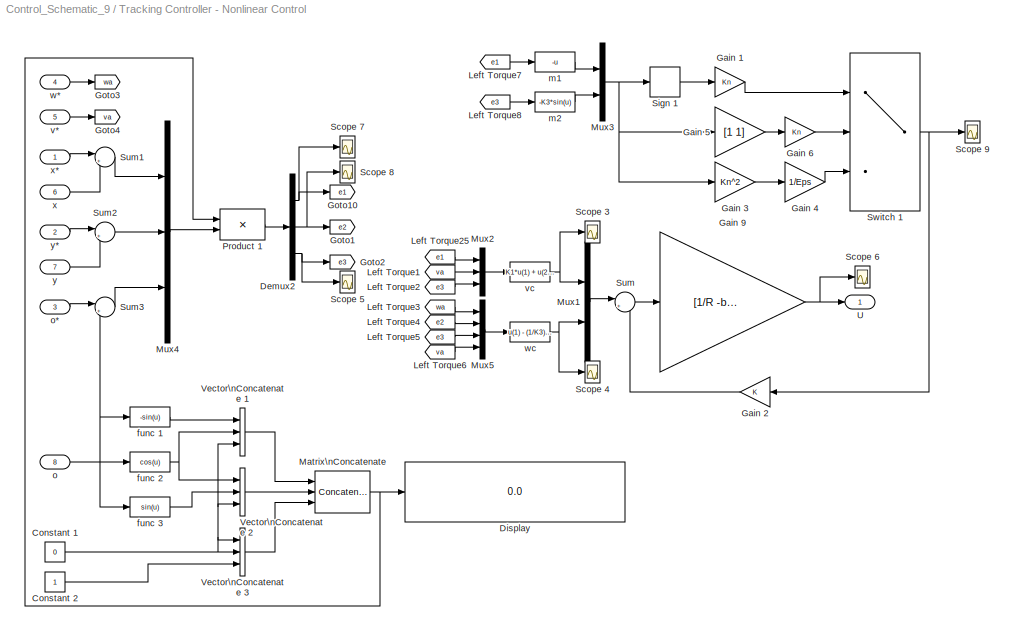
BLOCK [SubSystem] Tracking Controller - Nonlinear Control
  Ports = [8, 1]
  RequestExecContextInheritance = off
  SID = 4753
BLOCK [Constant] Tracking Controller - Nonlinear Control/Constant 1
  SID = 5154
  Value = 0
BLOCK [Constant] Tracking Controller - Nonlinear Control/Constant 2
  SID = 5155
BLOCK [Demux] Tracking Controller - Nonlinear Control/Demux2
  DisplayOption = bar
  Outputs = 3
  Ports = [1, 3]
  SID = 5167
BLOCK [Display] Tracking Controller - Nonlinear Control/Display
  Decimation = 1
  Ports = [1]
  SID = 5160
BLOCK [Gain] Tracking Controller - Nonlinear Control/Gain 1
  Gain = Kn
  OutDataTypeStr = Inherit: Inherit via internal rule
  ParamDataTypeStr = Inherit: Inherit via internal rule
  SID = 5109
  SaturateOnIntegerOverflow = off
BLOCK [Gain] Tracking Controller - Nonlinear Control/Gain 2
  OutDataTypeStr = Inherit: Inherit via internal rule
  ParamDataTypeStr = Inherit: Inherit via internal rule
  SID = 5316
  SaturateOnIntegerOverflow = off
BLOCK [Gain] Tracking Controller - Nonlinear Control/Gain 3
  Gain = Kn^2
  OutDataTypeStr = Inherit: Inherit via internal rule
  ParamDataTypeStr = Inherit: Inherit via internal rule
  SID = 5317
  SaturateOnIntegerOverflow = off
BLOCK [Gain] Tracking Controller - Nonlinear Control/Gain 4
  Gain = 1/Eps
  OutDataTypeStr = Inherit: Inherit via internal rule
  ParamDataTypeStr = Inherit: Inherit via internal rule
  SID = 5319
  SaturateOnIntegerOverflow = off
BLOCK [Gain] Tracking Controller - Nonlinear Control/Gain 5
  Gain = [1 1]
  Multiplication = Matrix(K*u)
  OutDataTypeStr = Inherit: Inherit via internal rule
  ParamDataTypeStr = Inherit: Inherit via internal rule
  SID = 5320
  SaturateOnIntegerOverflow = off
BLOCK [Gain] Tracking Controller - Nonlinear Control/Gain 6
  Gain = Kn
  OutDataTypeStr = Inherit: Inherit via internal rule
  ParamDataTypeStr = Inherit: Inherit via internal rule
  SID = 5321
  SaturateOnIntegerOverflow = off
BLOCK [Gain] Tracking Controller - Nonlinear Control/Gain 9
  Gain = [1/R -b/(2*R);1/R b/(2*R)]
  Multiplication = Matrix(K*u)
  OutDataTypeStr = Inherit: Inherit via internal rule
  ParamDataTypeStr = Inherit: Inherit via internal rule
  SID = 4854
  SaturateOnIntegerOverflow = off
BLOCK [Goto] Tracking Controller - Nonlinear Control/Goto1
  GotoTag = e2
  SID = 5168
BLOCK [Goto] Tracking Controller - Nonlinear Control/Goto10
  GotoTag = e1
  SID = 5166
BLOCK [Goto] Tracking Controller - Nonlinear Control/Goto2
  GotoTag = e3
  SID = 5169
BLOCK [Goto] Tracking Controller - Nonlinear Control/Goto3
  GotoTag = wa
  SID = 5174
BLOCK [Goto] Tracking Controller - Nonlinear Control/Goto4
  GotoTag = va
  SID = 5175
BLOCK [From] Tracking Controller - Nonlinear Control/Left Torque1
  GotoTag = va
  SID = 5173
BLOCK [From] Tracking Controller - Nonlinear Control/Left Torque2
  GotoTag = e3
  SID = 5176
BLOCK [From] Tracking Controller - Nonlinear Control/Left Torque25
  GotoTag = e1
  SID = 5172
BLOCK [From] Tracking Controller - Nonlinear Control/Left Torque3
  GotoTag = wa
  SID = 5179
BLOCK [From] Tracking Controller - Nonlinear Control/Left Torque4
  GotoTag = e2
  SID = 5180
BLOCK [From] Tracking Controller - Nonlinear Control/Left Torque5
  GotoTag = e3
  SID = 5181
BLOCK [From] Tracking Controller - Nonlinear Control/Left Torque6
  GotoTag = va
  SID = 5182
BLOCK [From] Tracking Controller - Nonlinear Control/Left Torque7
  GotoTag = e1
  SID = 5183
BLOCK [From] Tracking Controller - Nonlinear Control/Left Torque8
  GotoTag = e3
  SID = 5185
BLOCK [Concatenate] Tracking Controller - Nonlinear Control/Matrix\nConcatenate
  ConcatenateDimension = 2
  Mode = Multidimensional array
  NumInputs = 3
  Ports = [3, 1]
  SID = 5159
BLOCK [Mux] Tracking Controller - Nonlinear Control/Mux1
  DisplayOption = bar
  Inputs = 2
  Ports = [2, 1]
  SID = 4866
BLOCK [Mux] Tracking Controller - Nonlinear Control/Mux2
  DisplayOption = bar
  Inputs = 3
  Ports = [3, 1]
  SID = 5171
BLOCK [Mux] Tracking Controller - Nonlinear Control/Mux3
  DisplayOption = bar
  Inputs = 2
  Ports = [2, 1]
  SID = 5107
BLOCK [Mux] Tracking Controller - Nonlinear Control/Mux4
  DisplayOption = bar
  Inputs = 3
  Ports = [3, 1]
  SID = 5165
BLOCK [Mux] Tracking Controller - Nonlinear Control/Mux5
  DisplayOption = bar
  Ports = [4, 1]
  SID = 5178
BLOCK [Product] Tracking Controller - Nonlinear Control/Product 1
  InputSameDT = off
  Multiplication = Matrix(*)
  OutDataTypeStr = Inherit: Inherit via internal rule
  Ports = [2, 1]
  RndMeth = Floor
  SID = 5164
  SaturateOnIntegerOverflow = off
BLOCK [Scope] Tracking Controller - Nonlinear Control/Scope 3
  Floating = off
  LimitDataPoints = off
  NumInputPorts = 1
  Ports = [1]
  SID = 4954
  SaveName = ScopeData44
  ShowLegends = off
  YMax = 10
  YMin = -10
  ZoomMode = yonly
BLOCK [Scope] Tracking Controller - Nonlinear Control/Scope 4
  Floating = off
  LimitDataPoints = off
  NumInputPorts = 1
  Ports = [1]
  SID = 4955
  SaveName = ScopeData45
  ShowLegends = off
  YMax = 1300
  YMin = -400
  ZoomMode = yonly
BLOCK [Scope] Tracking Controller - Nonlinear Control/Scope 5
  Floating = off
  LimitDataPoints = off
  NumInputPorts = 1
  Ports = [1]
  SID = 4956
  SaveName = ScopeData47
  ShowLegends = off
  YMax = -1.75
  YMin = -8
BLOCK [Scope] Tracking Controller - Nonlinear Control/Scope 6
  Floating = off
  LimitDataPoints = off
  NumInputPorts = 1
  Ports = [1]
  SID = 4840
  SaveName = ScopeData12
  ShowLegends = off
  TimeRange = 388.54
  YMax = 0.5
  YMin = -0.5
  ZoomMode = yonly
BLOCK [Scope] Tracking Controller - Nonlinear Control/Scope 7
  Floating = off
  LimitDataPoints = off
  NumInputPorts = 1
  Ports = [1]
  SID = 4957
  SaveName = ScopeData48
  ShowLegends = off
  YMax = 10
  YMin = -10
  ZoomMode = yonly
BLOCK [Scope] Tracking Controller - Nonlinear Control/Scope 8
  Floating = off
  LimitDataPoints = off
  NumInputPorts = 1
  Ports = [1]
  SID = 4958
  SaveName = ScopeData49
  ShowLegends = off
  YMax = 10
  YMin = -10
  ZoomMode = yonly
BLOCK [Scope] Tracking Controller - Nonlinear Control/Scope 9
  Floating = off
  LimitDataPoints = off
  NumInputPorts = 1
  Ports = [1]
  SID = 5110
  SaveName = ScopeData50
  ShowLegends = off
  YMax = 0.1
  YMin = -0.1
  ZoomMode = yonly
BLOCK [Signum] Tracking Controller - Nonlinear Control/Sign 1
  SID = 5108
BLOCK [Sum] Tracking Controller - Nonlinear Control/Sum
  IconShape = round
  InputSameDT = off
  Inputs = |+-
  OutDataTypeStr = Inherit: Inherit via internal rule
  Ports = [2, 1]
  SID = 5104
  SaturateOnIntegerOverflow = off
BLOCK [Sum] Tracking Controller - Nonlinear Control/Sum1
  IconShape = round
  InputSameDT = off
  Inputs = |+-
  OutDataTypeStr = Inherit: Inherit via internal rule
  Ports = [2, 1]
  SID = 5161
  SaturateOnIntegerOverflow = off
BLOCK [Sum] Tracking Controller - Nonlinear Control/Sum2
  IconShape = round
  InputSameDT = off
  Inputs = |+-
  OutDataTypeStr = Inherit: Inherit via internal rule
  Ports = [2, 1]
  SID = 5162
  SaturateOnIntegerOverflow = off
BLOCK [Sum] Tracking Controller - Nonlinear Control/Sum3
  IconShape = round
  InputSameDT = off
  Inputs = |+-
  OutDataTypeStr = Inherit: Inherit via internal rule
  Ports = [2, 1]
  SID = 5163
  SaturateOnIntegerOverflow = off
BLOCK [Switch] Tracking Controller - Nonlinear Control/Switch 1
  InputSameDT = off
  SID = 5322
  SaturateOnIntegerOverflow = off
  Threshold = Eps
BLOCK [Outport] Tracking Controller - Nonlinear Control/U
  IconDisplay = Port number
  SID = 4849
BLOCK [Concatenate] Tracking Controller - Nonlinear Control/Vector\nConcatenate 1
  NumInputs = 3
  Ports = [3, 1]
  SID = 5156
BLOCK [Concatenate] Tracking Controller - Nonlinear Control/Vector\nConcatenate 2
  NumInputs = 3
  Ports = [3, 1]
  SID = 5157
BLOCK [Concatenate] Tracking Controller - Nonlinear Control/Vector\nConcatenate 3
  NumInputs = 3
  Ports = [3, 1]
  SID = 5158
BLOCK [Fcn] Tracking Controller - Nonlinear Control/func 1
  Expr = -sin(u)
  SID = 5137
BLOCK [Fcn] Tracking Controller - Nonlinear Control/func 2
  Expr = cos(u)
  SID = 5142
BLOCK [Fcn] Tracking Controller - Nonlinear Control/func 3
  Expr = sin(u)
  SID = 5143
BLOCK [Fcn] Tracking Controller - Nonlinear Control/m1
  Expr = -u
  SID = 5105
BLOCK [Fcn] Tracking Controller - Nonlinear Control/m2
  Expr = -K3*sin(u)
  SID = 5106
BLOCK [Inport] Tracking Controller - Nonlinear Control/o
  IconDisplay = Port number
  Port = 8
  SID = 5129
BLOCK [Inport] Tracking Controller - Nonlinear Control/o*
  IconDisplay = Port number
  Port = 3
  SID = 4755
BLOCK [Inport] Tracking Controller - Nonlinear Control/v*
  IconDisplay = Port number
  Port = 5
  SID = 5126
BLOCK [Fcn] Tracking Controller - Nonlinear Control/vc
  Expr = K1*u(1) + u(2)*cos(u(3))
  SID = 4949
BLOCK [Inport] Tracking Controller - Nonlinear Control/w*
  IconDisplay = Port number
  Port = 4
  SID = 5125
BLOCK [Fcn] Tracking Controller - Nonlinear Control/wc
  Expr = u(1) - (1/K3)*u(2)*u(4) + (K2/K3)*sin(u(3))
  SID = 4950
BLOCK [Inport] Tracking Controller - Nonlinear Control/x
  IconDisplay = Port number
  Port = 6
  SID = 5127
BLOCK [Inport] Tracking Controller - Nonlinear Control/x*
  IconDisplay = Port number
  SID = 4754
BLOCK [Inport] Tracking Controller - Nonlinear Control/y
  IconDisplay = Port number
  Port = 7
  SID = 5128
BLOCK [Inport] Tracking Controller - Nonlinear Control/y*
  IconDisplay = Port number
  Port = 2
  SID = 5124
BLOCK [UnitDelay] Unit Delay 2
  InputProcessing = Elements as channels (sample based)
  SID = 5376
  SampleTime = -1
BLOCK [Scope] X Distance
  Floating = off
  LimitDataPoints = off
  NumInputPorts = 1
  Ports = [1]
  SID = 4
  SaveName = ScopeData4
  ShowLegends = off
  YMax = 5000
  YMin = 0
  ZoomMode = yonly
BLOCK [Scope] X Distance (Noisy)
  Floating = off
  LimitDataPoints = off
  NumInputPorts = 1
  Ports = [1]
  SID = 1586
  SaveName = ScopeData19
  ShowLegends = off
  YMax = 2600
  YMin = 0
BLOCK [Reference] XY Graph  REF=simulink/Sinks/XY Graph
  Ports = [2]
  SID = 460
  SourceBlock = simulink/Sinks/XY Graph
  SourceType = XY scope.
  st = Ts
  xmax = 5000
  xmin = 0
  ymax = 5000
  ymin = 0
BLOCK [Scope] Y Distance
  Floating = off
  LimitDataPoints = off
  NumInputPorts = 1
  Ports = [1]
  SID = 5
  ShowLegends = off
  YMax = 5000
  YMin = 0
  ZoomMode = yonly
BLOCK [Scope] Y Distance (Noisy)
  Floating = off
  LimitDataPoints = off
  NumInputPorts = 1
  Ports = [1]
  SID = 1587
  SaveName = ScopeData21
  ShowLegends = off
  YMax = 2600
  YMin = 0
BLOCK [Fcn] v*
  Expr = sqrt(u(1)^2 + u(2)^2)
  SID = 5136
ANNOTATION (root): Noise Signals
ANNOTATION (root): Reference Trajectory
LINE Angular Velocity Controller - Robust Agebraic Control/Desired Left Angular Velocity:1 -> Angular Velocity Controller - Robust Agebraic Control/Sum2:1
LINE Angular Velocity Controller - Robust Agebraic Control/Desired Right Angular Velocity:1 -> Angular Velocity Controller - Robust Agebraic Control/Sum1:1
LINE Angular Velocity Controller - Robust Agebraic Control/Discrete-Time\nIntegrator 1:1 -> Angular Velocity Controller - Robust Agebraic Control/Sum4:3
LINE Angular Velocity Controller - Robust Agebraic Control/Discrete-Time\nIntegrator 2:1 -> Angular Velocity Controller - Robust Agebraic Control/Sum8:3
LINE Angular Velocity Controller - Robust Agebraic Control/Discrete\nTransfer Fcn 1:1 -> Angular Velocity Controller - Robust Agebraic Control/Sum4:1
LINE Angular Velocity Controller - Robust Agebraic Control/Discrete\nTransfer Fcn 2:1 -> Angular Velocity Controller - Robust Agebraic Control/Sum8:1
LINE Angular Velocity Controller - Robust Agebraic Control/Gain 1:1 -> Angular Velocity Controller - Robust Agebraic Control/Sum5:1
LINE Angular Velocity Controller - Robust Agebraic Control/Gain 2:1 -> Angular Velocity Controller - Robust Agebraic Control/Sum5:2
LINE Angular Velocity Controller - Robust Agebraic Control/Gain 3:1 -> Angular Velocity Controller - Robust Agebraic Control/Sum9:1
LINE Angular Velocity Controller - Robust Agebraic Control/Gain 4:1 -> Angular Velocity Controller - Robust Agebraic Control/Sum9:2
LINE Angular Velocity Controller - Robust Agebraic Control/Gain 5:1 -> Angular Velocity Controller - Robust Agebraic Control/Sum8:2
LINE Angular Velocity Controller - Robust Agebraic Control/Gain 6:1 -> Angular Velocity Controller - Robust Agebraic Control/Sum4:2
LINE Angular Velocity Controller - Robust Agebraic Control/Left Torque4:1 -> Angular Velocity Controller - Robust Agebraic Control/Sum1:2
LINE Angular Velocity Controller - Robust Agebraic Control/Left Torque6:1 -> Angular Velocity Controller - Robust Agebraic Control/Sum2:2
NET Angular Velocity Controller - Robust Agebraic Control/Saturation 1:1 -> Angular Velocity Controller - Robust Agebraic Control/Left Torque - Control Input:1, Angular Velocity Controller - Robust Agebraic Control/Sum6:2
NET Angular Velocity Controller - Robust Agebraic Control/Saturation 2:1 -> Angular Velocity Controller - Robust Agebraic Control/Right Torque - Control Input:1, Angular Velocity Controller - Robust Agebraic Control/Sum10:2
LINE Angular Velocity Controller - Robust Agebraic Control/Sum10:1 -> Angular Velocity Controller - Robust Agebraic Control/Unit Delay 2:1
NET Angular Velocity Controller - Robust Agebraic Control/Sum1:1 -> Angular Velocity Controller - Robust Agebraic Control/Discrete\nTransfer Fcn 2:1, Angular Velocity Controller - Robust Agebraic Control/Gain 3:1, Angular Velocity Controller - Robust Agebraic Control/Gain 5:1
NET Angular Velocity Controller - Robust Agebraic Control/Sum2:1 -> Angular Velocity Controller - Robust Agebraic Control/Discrete\nTransfer Fcn 1:1, Angular Velocity Controller - Robust Agebraic Control/Gain 1:1, Angular Velocity Controller - Robust Agebraic Control/Gain 6:1
NET Angular Velocity Controller - Robust Agebraic Control/Sum4:1 -> Angular Velocity Controller - Robust Agebraic Control/Saturation 1:1, Angular Velocity Controller - Robust Agebraic Control/Sum6:1
LINE Angular Velocity Controller - Robust Agebraic Control/Sum5:1 -> Angular Velocity Controller - Robust Agebraic Control/Discrete-Time\nIntegrator 1:1
LINE Angular Velocity Controller - Robust Agebraic Control/Sum6:1 -> Angular Velocity Controller - Robust Agebraic Control/Unit Delay 1:1
NET Angular Velocity Controller - Robust Agebraic Control/Sum8:1 -> Angular Velocity Controller - Robust Agebraic Control/Saturation 2:1, Angular Velocity Controller - Robust Agebraic Control/Sum10:1
LINE Angular Velocity Controller - Robust Agebraic Control/Sum9:1 -> Angular Velocity Controller - Robust Agebraic Control/Discrete-Time\nIntegrator 2:1
LINE Angular Velocity Controller - Robust Agebraic Control/Unit Delay 1:1 -> Angular Velocity Controller - Robust Agebraic Control/Gain 2:1
LINE Angular Velocity Controller - Robust Agebraic Control/Unit Delay 2:1 -> Angular Velocity Controller - Robust Agebraic Control/Gain 4:1
LINE Angular Velocity Controller - Robust Agebraic Control:1 -> Goto:1
LINE Angular Velocity Controller - Robust Agebraic Control:2 -> Goto1:1
LINE Clutch 1/Constant1:1 -> Clutch 1/Switch:1
LINE Clutch 1/Digital Clock:1 -> Clutch 1/Switch:2
NET Clutch 1/Gain 1:1 -> Clutch 1/Product:1, Clutch 1/Rear Wheel Angular Speed5:1
LINE Clutch 1/Input:1 -> Clutch 1/Product:2
LINE Clutch 1/Product:1 -> Clutch 1/Output:1
LINE Clutch 1/Sine Wave1:1 -> Clutch 1/Switch:3
LINE Clutch 1/Switch:1 -> Clutch 1/Gain 1:1
LINE Clutch 1:1 -> Angular Velocity Controller - Robust Agebraic Control:1
LINE Clutch 2/Constant1:1 -> Clutch 2/Switch:1
LINE Clutch 2/Digital Clock:1 -> Clutch 2/Switch:2
NET Clutch 2/Gain 1:1 -> Clutch 2/Product:1, Clutch 2/Rear Wheel Angular Speed5:1
LINE Clutch 2/Input:1 -> Clutch 2/Product:2
LINE Clutch 2/Product:1 -> Clutch 2/Output:1
LINE Clutch 2/Sine Wave1:1 -> Clutch 2/Switch:3
LINE Clutch 2/Switch:1 -> Clutch 2/Gain 1:1
LINE Clutch 2:1 -> Angular Velocity Controller - Robust Agebraic Control:2
LINE Constant 1:1 -> Sum2:1
NET Demux1:1 -> Goto14:1, Right Angular Velocity11:1
NET Demux1:2 -> Goto11:1, Right Angular Velocity14:1
NET Demux1:3 -> Goto12:1, Right Angular Velocity16:1
NET Demux1:4 -> Goto13:1, Right Angular Velocity15:1
NET Demux2:1 -> Goto17:1, Right Angular Velocity2:1, Tracking Controller - Nonlinear Control:6
NET Demux2:2 -> Goto18:1, Right Angular Velocity7:1, Tracking Controller - Nonlinear Control:7
NET Demux2:3 -> Goto19:1, Right Angular Velocity8:1, Tracking Controller - Nonlinear Control:8
LINE Demux3:1 -> Tracking Controller - Nonlinear Control:1
LINE Demux3:2 -> Tracking Controller - Nonlinear Control:2
LINE Demux5:1 -> Goto21:1
LINE Demux5:2 -> Goto22:1
LINE Discrete-Time\nIntegrator1:1 -> Manual Switch 1:1
NET Discrete-Time\nIntegrator2:1 -> Goto7:1, Right Angular Velocity12:1
NET Discrete-Time\nIntegrator3:1 -> Goto8:1, Right Angular Velocity13:1
NET Extended Kalman filter/Demux:1 -> Extended Kalman filter/Sum1:1, Extended Kalman filter/Unit Delay 2:1
NET Extended Kalman filter/Demux:2 -> Extended Kalman filter/Sum:1, Extended Kalman filter/Unit Delay 1:1
NET Extended Kalman filter/F_i/Constant 1:1 -> Extended Kalman filter/F_i/Vector\nConcatenate1:1, Extended Kalman filter/F_i/Vector\nConcatenate2:2, Extended Kalman filter/F_i/Vector\nConcatenate3:3
NET Extended Kalman filter/F_i/Constant 2:1 -> Extended Kalman filter/F_i/Vector\nConcatenate1:2, Extended Kalman filter/F_i/Vector\nConcatenate1:3, Extended Kalman filter/F_i/Vector\nConcatenate2:1, Extended Kalman filter/F_i/Vector\nConcatenate2:3
LINE Extended Kalman filter/F_i/Fcn 1:1 -> Extended Kalman filter/F_i/Vector\nConcatenate3:1
LINE Extended Kalman filter/F_i/Fcn 2:1 -> Extended Kalman filter/F_i/Vector\nConcatenate3:2
NET Extended Kalman filter/F_i/In:1 -> Extended Kalman filter/F_i/Fcn 1:1, Extended Kalman filter/F_i/Fcn 2:1
NET Extended Kalman filter/F_i/Matrix\nConcatenate:1 -> Extended Kalman filter/F_i/Display:1, Extended Kalman filter/F_i/Out:1
LINE Extended Kalman filter/F_i/Vector\nConcatenate1:1 -> Extended Kalman filter/F_i/Matrix\nConcatenate:1
LINE Extended Kalman filter/F_i/Vector\nConcatenate2:1 -> Extended Kalman filter/F_i/Matrix\nConcatenate:2
LINE Extended Kalman filter/F_i/Vector\nConcatenate3:1 -> Extended Kalman filter/F_i/Matrix\nConcatenate:3
LINE Extended Kalman filter/F_i:1 -> Extended Kalman filter/K_i:5
NET Extended Kalman filter/Fcn 3:1 -> Extended Kalman filter/Mux1:2, Extended Kalman filter/Unit Delay 7:1
NET Extended Kalman filter/Fcn 4:1 -> Extended Kalman filter/Mux1:1, Extended Kalman filter/Unit Delay 8:1
LINE Extended Kalman filter/G_i/Constant 1:1 -> Extended Kalman filter/G_i/Vector\nConcatenate1:3
LINE Extended Kalman filter/G_i/Constant 2:1 -> Extended Kalman filter/G_i/Vector\nConcatenate3:3
LINE Extended Kalman filter/G_i/Fcn 1:1 -> Extended Kalman filter/G_i/Vector\nConcatenate3:1
LINE Extended Kalman filter/G_i/Fcn 2:1 -> Extended Kalman filter/G_i/Vector\nConcatenate3:2
LINE Extended Kalman filter/G_i/Fcn 3:1 -> Extended Kalman filter/G_i/Vector\nConcatenate1:1
LINE Extended Kalman filter/G_i/Fcn 4:1 -> Extended Kalman filter/G_i/Vector\nConcatenate1:2
NET Extended Kalman filter/G_i/In:1 -> Extended Kalman filter/G_i/Fcn 1:1, Extended Kalman filter/G_i/Fcn 2:1, Extended Kalman filter/G_i/Fcn 3:1, Extended Kalman filter/G_i/Fcn 4:1
NET Extended Kalman filter/G_i/Matrix\nConcatenate:1 -> Extended Kalman filter/G_i/Display:1, Extended Kalman filter/G_i/Out:1
LINE Extended Kalman filter/G_i/Vector\nConcatenate1:1 -> Extended Kalman filter/G_i/Matrix\nConcatenate:2
LINE Extended Kalman filter/G_i/Vector\nConcatenate3:1 -> Extended Kalman filter/G_i/Matrix\nConcatenate:1
LINE Extended Kalman filter/G_i:1 -> Extended Kalman filter/K_i:4
NET Extended Kalman filter/Gain 1:1 -> Extended Kalman filter/Goto2:1, Extended Kalman filter/Right Angular Velocity1:1
LINE Extended Kalman filter/Gain 2:1 -> Extended Kalman filter/Demux:1
LINE Extended Kalman filter/Gain 4:1 -> Extended Kalman filter/Goto4:1
NET Extended Kalman filter/Gain 5:1 -> Extended Kalman filter/Goto3:1, Extended Kalman filter/Right Angular Velocity6:1
LINE Extended Kalman filter/H_i:1 -> Extended Kalman filter/K_i:2
LINE Extended Kalman filter/K_i/ LU Inverse:1 -> Extended Kalman filter/K_i/Product 7:3
NET Extended Kalman filter/K_i/F_i:1 -> Extended Kalman filter/K_i/Math\nFunction 2:1, Extended Kalman filter/K_i/Product 2:1
NET Extended Kalman filter/K_i/G_i:1 -> Extended Kalman filter/K_i/Math\nFunction 1:1, Extended Kalman filter/K_i/Product 1:1
NET Extended Kalman filter/K_i/H_i:1 -> Extended Kalman filter/K_i/Math\nFunction 3:1, Extended Kalman filter/K_i/Product 3:2, Extended Kalman filter/K_i/Product 5:1
LINE Extended Kalman filter/K_i/Math\nFunction 1:1 -> Extended Kalman filter/K_i/Product 1:3
LINE Extended Kalman filter/K_i/Math\nFunction 2:1 -> Extended Kalman filter/K_i/Product 2:3
NET Extended Kalman filter/K_i/Math\nFunction 3:1 -> Extended Kalman filter/K_i/Product 5:3, Extended Kalman filter/K_i/Product 7:2
LINE Extended Kalman filter/K_i/Product 1:1 -> Extended Kalman filter/K_i/Sum3:1
LINE Extended Kalman filter/K_i/Product 2:1 -> Extended Kalman filter/K_i/Sum3:2
LINE Extended Kalman filter/K_i/Product 3:1 -> Extended Kalman filter/K_i/Product 4:1
LINE Extended Kalman filter/K_i/Product 4:1 -> Extended Kalman filter/K_i/Sum1:1
LINE Extended Kalman filter/K_i/Product 5:1 -> Extended Kalman filter/K_i/Sum2:2
NET Extended Kalman filter/K_i/Product 7:1 -> Extended Kalman filter/K_i/Display:1, Extended Kalman filter/K_i/Out:1, Extended Kalman filter/K_i/Product 3:1
LINE Extended Kalman filter/K_i/Q_i:1 -> Extended Kalman filter/K_i/Product 1:2
LINE Extended Kalman filter/K_i/R_i:1 -> Extended Kalman filter/K_i/Sum2:1
LINE Extended Kalman filter/K_i/Sum1:1 -> Extended Kalman filter/K_i/Unit Delay 4:1
LINE Extended Kalman filter/K_i/Sum2:1 -> Extended Kalman filter/K_i/ LU Inverse:1
NET Extended Kalman filter/K_i/Sum3:1 -> Extended Kalman filter/K_i/Product 4:2, Extended Kalman filter/K_i/Product 5:2, Extended Kalman filter/K_i/Product 7:1, Extended Kalman filter/K_i/Sum1:2
LINE Extended Kalman filter/K_i/Unit Delay 4:1 -> Extended Kalman filter/K_i/Product 2:2
LINE Extended Kalman filter/K_i:1 -> Extended Kalman filter/f_i:4
LINE Extended Kalman filter/Left Torque10:1 -> Extended Kalman filter/f_i:2
LINE Extended Kalman filter/Left Torque11:1 -> Extended Kalman filter/Q_i:1
LINE Extended Kalman filter/Left Torque12:1 -> Extended Kalman filter/Q_i:2
LINE Extended Kalman filter/Left Torque13:1 -> Extended Kalman filter/Manual Switch 1:1
LINE Extended Kalman filter/Left Torque19:1 -> Extended Kalman filter/f_i:3
LINE Extended Kalman filter/Left Torque1:1 -> Extended Kalman filter/Sum2:1
LINE Extended Kalman filter/Left Torque28:1 -> Extended Kalman filter/Mux4:2
LINE Extended Kalman filter/Left Torque29:1 -> Extended Kalman filter/Mux5:2
LINE Extended Kalman filter/Left Torque2:1 -> Extended Kalman filter/Sum2:2
LINE Extended Kalman filter/Left Torque30:1 -> Extended Kalman filter/Sum10:1
LINE Extended Kalman filter/Left Torque3:1 -> Extended Kalman filter/Sum3:1
LINE Extended Kalman filter/Left Torque4:1 -> Extended Kalman filter/Sum3:2
LINE Extended Kalman filter/Left Torque5:1 -> Extended Kalman filter/Mux2:2
NET Extended Kalman filter/Left Torque8:1 -> Extended Kalman filter/Mux3:1, Extended Kalman filter/f_i:1
NET Extended Kalman filter/Manual Switch 1:1 -> Extended Kalman filter/Right Angular Velocity4:1, Extended Kalman filter/X_i:1
LINE Extended Kalman filter/Mux1:1 -> Extended Kalman filter/Gain 4:1
LINE Extended Kalman filter/Mux2:1 -> Extended Kalman filter/Right Angular Velocity3:1
NET Extended Kalman filter/Mux3:1 -> Extended Kalman filter/F_i:1, Extended Kalman filter/G_i:1
LINE Extended Kalman filter/Mux4:1 -> Extended Kalman filter/Fcn 3:1
LINE Extended Kalman filter/Mux5:1 -> Extended Kalman filter/Fcn 4:1
NET Extended Kalman filter/Q_i/Abs 2:1 -> Extended Kalman filter/Q_i/Alpha_1:1, Extended Kalman filter/Q_i/Alpha_3:1
NET Extended Kalman filter/Q_i/Abs 3:1 -> Extended Kalman filter/Q_i/Alpha_2:1, Extended Kalman filter/Q_i/Alpha_4:1
LINE Extended Kalman filter/Q_i/Alpha_1:1 -> Extended Kalman filter/Q_i/Sum:1
LINE Extended Kalman filter/Q_i/Alpha_2:1 -> Extended Kalman filter/Q_i/Sum:2
LINE Extended Kalman filter/Q_i/Alpha_3:1 -> Extended Kalman filter/Q_i/Sum1:1
LINE Extended Kalman filter/Q_i/Alpha_4:1 -> Extended Kalman filter/Q_i/Sum1:2
NET Extended Kalman filter/Q_i/Constant 2:1 -> Extended Kalman filter/Q_i/Vector\nConcatenate1:1, Extended Kalman filter/Q_i/Vector\nConcatenate3:2
LINE Extended Kalman filter/Q_i/In 1:1 -> Extended Kalman filter/Q_i/Abs 2:1
LINE Extended Kalman filter/Q_i/In 2:1 -> Extended Kalman filter/Q_i/Abs 3:1
LINE Extended Kalman filter/Q_i/Math\nFunction 1:1 -> Extended Kalman filter/Q_i/Vector\nConcatenate3:1
LINE Extended Kalman filter/Q_i/Math\nFunction 2:1 -> Extended Kalman filter/Q_i/Vector\nConcatenate1:2
NET Extended Kalman filter/Q_i/Matrix\nConcatenate:1 -> Extended Kalman filter/Q_i/Display:1, Extended Kalman filter/Q_i/Out:1
LINE Extended Kalman filter/Q_i/Sum1:1 -> Extended Kalman filter/Q_i/Math\nFunction 2:1
LINE Extended Kalman filter/Q_i/Sum:1 -> Extended Kalman filter/Q_i/Math\nFunction 1:1
LINE Extended Kalman filter/Q_i/Vector\nConcatenate1:1 -> Extended Kalman filter/Q_i/Matrix\nConcatenate:2
LINE Extended Kalman filter/Q_i/Vector\nConcatenate3:1 -> Extended Kalman filter/Q_i/Matrix\nConcatenate:1
LINE Extended Kalman filter/Q_i:1 -> Extended Kalman filter/K_i:3
LINE Extended Kalman filter/R_i:1 -> Extended Kalman filter/K_i:1
NET Extended Kalman filter/Sum10:1 -> Extended Kalman filter/Mux1:3, Extended Kalman filter/Unit Delay 3:1
LINE Extended Kalman filter/Sum1:1 -> Extended Kalman filter/Goto1:1
LINE Extended Kalman filter/Sum2:1 -> Extended Kalman filter/Gain 1:1
LINE Extended Kalman filter/Sum3:1 -> Extended Kalman filter/Gain 5:1
LINE Extended Kalman filter/Sum:1 -> Extended Kalman filter/Goto19:1
LINE Extended Kalman filter/U:1 -> Extended Kalman filter/Gain 2:1
LINE Extended Kalman filter/Unit Delay 1:1 -> Extended Kalman filter/Sum:2
LINE Extended Kalman filter/Unit Delay 2:1 -> Extended Kalman filter/Sum1:2
NET Extended Kalman filter/Unit Delay 3:1 -> Extended Kalman filter/Mux4:3, Extended Kalman filter/Mux5:3, Extended Kalman filter/Right Angular Velocity5:1, Extended Kalman filter/Sum10:2
NET Extended Kalman filter/Unit Delay 7:1 -> Extended Kalman filter/Mux4:1, Extended Kalman filter/Right Angular Velocity7:1
NET Extended Kalman filter/Unit Delay 8:1 -> Extended Kalman filter/Mux5:1, Extended Kalman filter/Right Angular Velocity8:1
LINE Extended Kalman filter/Z:1 -> Extended Kalman filter/Sigma_b4:1
NET Extended Kalman filter/f_i/Delta_s,c:1 -> Extended Kalman filter/f_i/Mux1:1, Extended Kalman filter/f_i/Mux2:1
LINE Extended Kalman filter/f_i/Delta_theta,c:1 -> Extended Kalman filter/f_i/Mux:3
LINE Extended Kalman filter/f_i/Fcn 1:1 -> Extended Kalman filter/f_i/Mux:1
LINE Extended Kalman filter/f_i/Fcn 2:1 -> Extended Kalman filter/f_i/Mux:2
LINE Extended Kalman filter/f_i/Gain 1:1 -> Extended Kalman filter/f_i/Sum2:2
LINE Extended Kalman filter/f_i/Gain 2:1 -> Extended Kalman filter/f_i/Theta_i-1:1
NET Extended Kalman filter/f_i/Gain 6:1 -> Extended Kalman filter/f_i/Mux1:2, Extended Kalman filter/f_i/Mux2:2
LINE Extended Kalman filter/f_i/K_i:1 -> Extended Kalman filter/f_i/Product 1:1
LINE Extended Kalman filter/f_i/Mux1:1 -> Extended Kalman filter/f_i/Fcn 2:1
LINE Extended Kalman filter/f_i/Mux2:1 -> Extended Kalman filter/f_i/Fcn 1:1
LINE Extended Kalman filter/f_i/Mux:1 -> Extended Kalman filter/f_i/Sum4:2
LINE Extended Kalman filter/f_i/Product 1:1 -> Extended Kalman filter/f_i/Sum4:3
LINE Extended Kalman filter/f_i/Sum2:1 -> Extended Kalman filter/f_i/Product 1:2
NET Extended Kalman filter/f_i/Sum4:1 -> Extended Kalman filter/f_i/Gain 1:1, Extended Kalman filter/f_i/Gain 6:1, Extended Kalman filter/f_i/Right Angular Velocity3:1, Extended Kalman filter/f_i/Unit Delay 7:1, Extended Kalman filter/f_i/X_i:1
NET Extended Kalman filter/f_i/Unit Delay 7:1 -> Extended Kalman filter/f_i/Gain 2:1, Extended Kalman filter/f_i/Sum4:1
LINE Extended Kalman filter/f_i/Z_i:1 -> Extended Kalman filter/f_i/Sum2:1
NET Extended Kalman filter/f_i:1 -> Extended Kalman filter/Manual Switch 1:2, Extended Kalman filter/Mux2:1
LINE Extended Kalman filter/f_i:2 -> Extended Kalman filter/Mux3:2
LINE Extended Kalman filter:1 -> Demux2:1
LINE From\nWorkspace:1 -> Demux1:1
LINE Gain 1:1 -> Mux7:3
LINE Gain 2:1 -> Tracking Controller - Nonlinear Control:4
LINE Gain 3:1 -> Tracking Controller - Nonlinear Control:5
LINE Gain 6:1 -> Sum2:2
LINE Gain 8:1 -> Mux6:3
LINE Left Torque10:1 -> Mux1:2
LINE Left Torque11:1 -> Clutch 2:1
LINE Left Torque12:1 -> Mux2:1
LINE Left Torque13:1 -> Mux4:1
LINE Left Torque14:1 -> Mux4:2
LINE Left Torque15:1 -> Mux5:1
LINE Left Torque16:1 -> Mux5:2
LINE Left Torque17:1 -> Mux2:2
LINE Left Torque18:1 -> Mux3:1
LINE Left Torque19:1 -> Mux3:2
LINE Left Torque1:1 -> Discrete-Time\nIntegrator2:1
LINE Left Torque20:1 -> Mux1:3
LINE Left Torque21:1 -> Mux6:1
LINE Left Torque22:1 -> Mux6:2
LINE Left Torque23:1 -> Mux7:1
LINE Left Torque24:1 -> Mux7:2
LINE Left Torque25:1 -> Demux3:1
LINE Left Torque26:1 -> v*:1
LINE Left Torque27:1 -> Gain 2:1
LINE Left Torque28:1 -> Mux10:1
LINE Left Torque29:1 -> Mux10:2
LINE Left Torque2:1 -> Mux9:1
LINE Left Torque36:1 -> Gain 8:1
LINE Left Torque37:1 -> Gain 1:1
LINE Left Torque3:1 -> Mux9:2
LINE Left Torque4:1 -> Clutch 1:1
LINE Left Torque5:1 -> Discrete-Time\nIntegrator3:1
LINE Left Torque6:1 -> Gain 6:1
NET Left Torque7:1 -> Mux8:1, XY Graph:1
NET Left Torque8:1 -> Mux8:2, XY Graph:2
LINE Left Torque9:1 -> Mux1:1
NET Left Torque:1 -> Mobile robot:2, Right Angular Velocity4:1
NET Manual Switch 1:1 -> Goto10:1, Scope 3:1, To Workspace 2:1
LINE Manual Switch 2:1 -> Manual Switch 1:2
LINE Mobile robot/ADAMS Plant/ADAMS inputs:1 -> Mobile robot/ADAMS Plant/S-Function:1
LINE Mobile robot/ADAMS Plant/S-Function:1 -> Mobile robot/ADAMS Plant/ADAMS outputs:1
NET Mobile robot/ADAMS Plant:1 -> Mobile robot/Demux:1, Mobile robot/Y To Workspace:1
LINE Mobile robot/Clock:1 -> Mobile robot/T To Workspace:1
LINE Mobile robot/Demux:1 -> Mobile robot/Wrw:1
LINE Mobile robot/Demux:2 -> Mobile robot/Wlw:1
LINE Mobile robot/Demux:3 -> Mobile robot/Alpha:1
LINE Mobile robot/Demux:4 -> Mobile robot/X_Dist:1
LINE Mobile robot/Demux:5 -> Mobile robot/Y_Dist:1
NET Mobile robot/Mux:1 -> Mobile robot/ADAMS Plant:1, Mobile robot/U To Workspace:1
LINE Mobile robot/Tlw:1 -> Mobile robot/Mux:2
LINE Mobile robot/Trw:1 -> Mobile robot/Mux:1
NET Mobile robot:1 -> Goto2:1, Right Wheel Angular Velocity:1
NET Mobile robot:2 -> Goto3:1, Left Wheel Angular Velocity:1
NET Mobile robot:3 -> Goto4:1, Orientation Angle:1
NET Mobile robot:4 -> Goto5:1, Sum:1, X Distance:1
NET Mobile robot:5 -> Goto6:1, Sum1:1, Y Distance:1
NET Mux10:1 -> Right Angular Velocity17:1, To Workspace 8:1
NET Mux1:1 -> Right Angular Velocity1:1, To Workspace 7:1
LINE Mux2:1 -> Extended Kalman filter:1
LINE Mux3:1 -> Extended Kalman filter:2
NET Mux4:1 -> Right Angular Velocity5:1, To Workspace 5:1
NET Mux5:1 -> Right Angular Velocity6:1, To Workspace 6:1
NET Mux6:1 -> Right Angular Velocity9:1, To Workspace 3:1
NET Mux7:1 -> Right Angular Velocity10:1, To Workspace 4:1
LINE Mux8:1 -> To Workspace 1:1
NET Mux9:1 -> Discrete-Time\nIntegrator1:1, Goto9:1
LINE Position reference 1/Clutch 3/Constant1:1 -> Position reference 1/Clutch 3/Switch:1
LINE Position reference 1/Clutch 3/Digital Clock:1 -> Position reference 1/Clutch 3/Switch:2
LINE Position reference 1/Clutch 3/Input:1 -> Position reference 1/Clutch 3/Product:2
LINE Position reference 1/Clutch 3/Product:1 -> Position reference 1/Clutch 3/Output:1
LINE Position reference 1/Clutch 3/Sine Wave:1 -> Position reference 1/Clutch 3/Switch:3
NET Position reference 1/Clutch 3/Switch:1 -> Position reference 1/Clutch 3/Product:1, Position reference 1/Clutch 3/Rear Wheel Angular Speed5:1
NET Position reference 1/Clutch 3:1 -> Position reference 1/Sum3:2, Position reference 1/Switch 1:2, Position reference 1/Switch 2:2, Position reference 1/Switch 2:3, Position reference 1/Switch 3:2, Position reference 1/Switch 4:2, Position reference 1/Switch 5:2, Position reference 1/Switch 6:2
LINE Position reference 1/Constant 10:1 -> Position reference 1/Switch 5:1
LINE Position reference 1/Constant 11:1 -> Position reference 1/Switch 6:3
LINE Position reference 1/Constant 12:1 -> Position reference 1/Switch 6:1
LINE Position reference 1/Constant 1:1 -> Position reference 1/Switch 4:3
LINE Position reference 1/Constant 2:1 -> Position reference 1/Switch 4:1
LINE Position reference 1/Constant 3:1 -> Position reference 1/Switch 1:3
LINE Position reference 1/Constant 4:1 -> Position reference 1/Sum3:1
LINE Position reference 1/Constant 5:1 -> Position reference 1/Switch 2:1
LINE Position reference 1/Constant 6:1 -> Position reference 1/Switch 3:3
LINE Position reference 1/Constant 7:1 -> Position reference 1/Product 4:1
LINE Position reference 1/Constant 8:1 -> Position reference 1/Switch 3:1
LINE Position reference 1/Constant 9:1 -> Position reference 1/Switch 5:3
LINE Position reference 1/Digital Clock1:1 -> Position reference 1/Clutch 3:1
LINE Position reference 1/Mux12:1 -> Position reference 1/Sum4:1
LINE Position reference 1/Mux1:1 -> Position reference 1/Sum4:2
LINE Position reference 1/Product 1:1 -> Position reference 1/Sum1:2
LINE Position reference 1/Product 2:1 -> Position reference 1/Sum2:2
LINE Position reference 1/Product 4:1 -> Position reference 1/Sum6:1
LINE Position reference 1/Sine Wave 1:1 -> Position reference 1/Product 1:2
LINE Position reference 1/Sine Wave 2:1 -> Position reference 1/Product 2:2
LINE Position reference 1/Sine Wave 3:1 -> Position reference 1/Product 1:1
LINE Position reference 1/Sine Wave 4:1 -> Position reference 1/Product 2:1
NET Position reference 1/Sum1:1 -> Position reference 1/Mux12:1, Position reference 1/Scope 2:1
NET Position reference 1/Sum2:1 -> Position reference 1/Mux12:2, Position reference 1/Scope 3:1
LINE Position reference 1/Sum3:1 -> Position reference 1/Switch 1:1
LINE Position reference 1/Sum4:1 -> Position reference 1/X*:1
LINE Position reference 1/Sum6:1 -> Position reference 1/Mux1:2
NET Position reference 1/Switch 1:1 -> Position reference 1/Sine Wave 1:1, Position reference 1/Sine Wave 2:1, Position reference 1/Sine Wave 3:1, Position reference 1/Sine Wave 4:1
LINE Position reference 1/Switch 2:1 -> Position reference 1/Product 4:2
LINE Position reference 1/Switch 3:1 -> Position reference 1/Mux1:1
LINE Position reference 1/Switch 4:1 -> Position reference 1/Sum1:1
LINE Position reference 1/Switch 5:1 -> Position reference 1/Sum6:2
LINE Position reference 1/Switch 6:1 -> Position reference 1/Sum2:1
LINE Position reference 1:1 -> Manual Switch 2:1
LINE Position reference 2/Clutch 3/Constant1:1 -> Position reference 2/Clutch 3/Switch:1
LINE Position reference 2/Clutch 3/Digital Clock:1 -> Position reference 2/Clutch 3/Switch:2
LINE Position reference 2/Clutch 3/Input:1 -> Position reference 2/Clutch 3/Product:2
LINE Position reference 2/Clutch 3/Product:1 -> Position reference 2/Clutch 3/Output:1
LINE Position reference 2/Clutch 3/Sine Wave:1 -> Position reference 2/Clutch 3/Switch:3
NET Position reference 2/Clutch 3/Switch:1 -> Position reference 2/Clutch 3/Product:1, Position reference 2/Clutch 3/Rear Wheel Angular Speed5:1
LINE Position reference 2/Clutch 3:1 -> Position reference 2/Mux1:2
LINE Position reference 2/Constant 1:1 -> Position reference 2/Mux1:3
LINE Position reference 2/Constant 2:1 -> Position reference 2/Mux1:1
LINE Position reference 2/Constant 3:1 -> Position reference 2/Sum1:1
LINE Position reference 2/Constant 4:1 -> Position reference 2/Sum3:2
LINE Position reference 2/Digital Clock1:1 -> Position reference 2/Clutch 3:1
LINE Position reference 2/Fcn 1:1 -> Position reference 2/Sum1:2
LINE Position reference 2/Fcn 2:1 -> Position reference 2/Sum3:1
NET Position reference 2/Mux12:1 -> Position reference 2/To Workspace 2:1, Position reference 2/X*:1
NET Position reference 2/Mux1:1 -> Position reference 2/Fcn 1:1, Position reference 2/Fcn 2:1
NET Position reference 2/Sum1:1 -> Position reference 2/Mux12:1, Position reference 2/Scope 2:1
NET Position reference 2/Sum3:1 -> Position reference 2/Mux12:2, Position reference 2/Scope 3:1
LINE Position reference 2:1 -> Manual Switch 2:2
LINE Position reference 3/Constant 3:1 -> Position reference 3/Mux12:1
LINE Position reference 3/Constant 4:1 -> Position reference 3/Mux12:2
NET Position reference 3/Mux12:1 -> Position reference 3/To Workspace 2:1, Position reference 3/X*:1
LINE Position reference 3:1 -> Goto20:1
LINE Random\nNumber 1:1 -> Sum:2
LINE Random\nNumber 2:1 -> Sum1:2
NET Right Torque:1 -> Mobile robot:1, Right Angular Velocity3:1
NET Sum1:1 -> Goto16:1, Y Distance (Noisy):1
LINE Sum2:1 -> Tracking Controller - Nonlinear Control:3
NET Sum:1 -> Goto15:1, X Distance (Noisy):1
NET Tracking Controller - Nonlinear Control/Constant 1:1 -> Tracking Controller - Nonlinear Control/Vector\nConcatenate 1:3, Tracking Controller - Nonlinear Control/Vector\nConcatenate 2:3, Tracking Controller - Nonlinear Control/Vector\nConcatenate 3:1, Tracking Controller - Nonlinear Control/Vector\nConcatenate 3:2
LINE Tracking Controller - Nonlinear Control/Constant 2:1 -> Tracking Controller - Nonlinear Control/Vector\nConcatenate 3:3
NET Tracking Controller - Nonlinear Control/Demux2:1 -> Tracking Controller - Nonlinear Control/Goto10:1, Tracking Controller - Nonlinear Control/Scope 7:1
NET Tracking Controller - Nonlinear Control/Demux2:2 -> Tracking Controller - Nonlinear Control/Goto1:1, Tracking Controller - Nonlinear Control/Scope 8:1
NET Tracking Controller - Nonlinear Control/Demux2:3 -> Tracking Controller - Nonlinear Control/Goto2:1, Tracking Controller - Nonlinear Control/Scope 5:1
LINE Tracking Controller - Nonlinear Control/Gain 1:1 -> Tracking Controller - Nonlinear Control/Switch 1:1
LINE Tracking Controller - Nonlinear Control/Gain 2:1 -> Tracking Controller - Nonlinear Control/Sum:2
LINE Tracking Controller - Nonlinear Control/Gain 3:1 -> Tracking Controller - Nonlinear Control/Gain 4:1
LINE Tracking Controller - Nonlinear Control/Gain 4:1 -> Tracking Controller - Nonlinear Control/Switch 1:3
LINE Tracking Controller - Nonlinear Control/Gain 5:1 -> Tracking Controller - Nonlinear Control/Gain 6:1
LINE Tracking Controller - Nonlinear Control/Gain 6:1 -> Tracking Controller - Nonlinear Control/Switch 1:2
NET Tracking Controller - Nonlinear Control/Gain 9:1 -> Tracking Controller - Nonlinear Control/Scope 6:1, Tracking Controller - Nonlinear Control/U:1
LINE Tracking Controller - Nonlinear Control/Left Torque1:1 -> Tracking Controller - Nonlinear Control/Mux2:2
LINE Tracking Controller - Nonlinear Control/Left Torque25:1 -> Tracking Controller - Nonlinear Control/Mux2:1
LINE Tracking Controller - Nonlinear Control/Left Torque2:1 -> Tracking Controller - Nonlinear Control/Mux2:3
LINE Tracking Controller - Nonlinear Control/Left Torque3:1 -> Tracking Controller - Nonlinear Control/Mux5:1
LINE Tracking Controller - Nonlinear Control/Left Torque4:1 -> Tracking Controller - Nonlinear Control/Mux5:2
LINE Tracking Controller - Nonlinear Control/Left Torque5:1 -> Tracking Controller - Nonlinear Control/Mux5:3
LINE Tracking Controller - Nonlinear Control/Left Torque6:1 -> Tracking Controller - Nonlinear Control/Mux5:4
LINE Tracking Controller - Nonlinear Control/Left Torque7:1 -> Tracking Controller - Nonlinear Control/m1:1
LINE Tracking Controller - Nonlinear Control/Left Torque8:1 -> Tracking Controller - Nonlinear Control/m2:1
NET Tracking Controller - Nonlinear Control/Matrix\nConcatenate:1 -> Tracking Controller - Nonlinear Control/Display:1, Tracking Controller - Nonlinear Control/Product 1:1
LINE Tracking Controller - Nonlinear Control/Mux1:1 -> Tracking Controller - Nonlinear Control/Sum:1
LINE Tracking Controller - Nonlinear Control/Mux2:1 -> Tracking Controller - Nonlinear Control/vc:1
NET Tracking Controller - Nonlinear Control/Mux3:1 -> Tracking Controller - Nonlinear Control/Gain 3:1, Tracking Controller - Nonlinear Control/Gain 5:1, Tracking Controller - Nonlinear Control/Sign 1:1
LINE Tracking Controller - Nonlinear Control/Mux4:1 -> Tracking Controller - Nonlinear Control/Product 1:2
LINE Tracking Controller - Nonlinear Control/Mux5:1 -> Tracking Controller - Nonlinear Control/wc:1
LINE Tracking Controller - Nonlinear Control/Product 1:1 -> Tracking Controller - Nonlinear Control/Demux2:1
LINE Tracking Controller - Nonlinear Control/Sign 1:1 -> Tracking Controller - Nonlinear Control/Gain 1:1
LINE Tracking Controller - Nonlinear Control/Sum1:1 -> Tracking Controller - Nonlinear Control/Mux4:1
LINE Tracking Controller - Nonlinear Control/Sum2:1 -> Tracking Controller - Nonlinear Control/Mux4:2
LINE Tracking Controller - Nonlinear Control/Sum3:1 -> Tracking Controller - Nonlinear Control/Mux4:3
LINE Tracking Controller - Nonlinear Control/Sum:1 -> Tracking Controller - Nonlinear Control/Gain 9:1
NET Tracking Controller - Nonlinear Control/Switch 1:1 -> Tracking Controller - Nonlinear Control/Gain 2:1, Tracking Controller - Nonlinear Control/Scope 9:1
LINE Tracking Controller - Nonlinear Control/Vector\nConcatenate 1:1 -> Tracking Controller - Nonlinear Control/Matrix\nConcatenate:1
LINE Tracking Controller - Nonlinear Control/Vector\nConcatenate 2:1 -> Tracking Controller - Nonlinear Control/Matrix\nConcatenate:2
LINE Tracking Controller - Nonlinear Control/Vector\nConcatenate 3:1 -> Tracking Controller - Nonlinear Control/Matrix\nConcatenate:3
LINE Tracking Controller - Nonlinear Control/func 1:1 -> Tracking Controller - Nonlinear Control/Vector\nConcatenate 1:1
NET Tracking Controller - Nonlinear Control/func 2:1 -> Tracking Controller - Nonlinear Control/Vector\nConcatenate 1:2, Tracking Controller - Nonlinear Control/Vector\nConcatenate 2:1
LINE Tracking Controller - Nonlinear Control/func 3:1 -> Tracking Controller - Nonlinear Control/Vector\nConcatenate 2:2
LINE Tracking Controller - Nonlinear Control/m1:1 -> Tracking Controller - Nonlinear Control/Mux3:1
LINE Tracking Controller - Nonlinear Control/m2:1 -> Tracking Controller - Nonlinear Control/Mux3:2
LINE Tracking Controller - Nonlinear Control/o*:1 -> Tracking Controller - Nonlinear Control/Sum3:1
NET Tracking Controller - Nonlinear Control/o:1 -> Tracking Controller - Nonlinear Control/Sum3:2, Tracking Controller - Nonlinear Control/func 1:1, Tracking Controller - Nonlinear Control/func 2:1, Tracking Controller - Nonlinear Control/func 3:1
LINE Tracking Controller - Nonlinear Control/v*:1 -> Tracking Controller - Nonlinear Control/Goto4:1
NET Tracking Controller - Nonlinear Control/vc:1 -> Tracking Controller - Nonlinear Control/Mux1:1, Tracking Controller - Nonlinear Control/Scope 3:1
LINE Tracking Controller - Nonlinear Control/w*:1 -> Tracking Controller - Nonlinear Control/Goto3:1
NET Tracking Controller - Nonlinear Control/wc:1 -> Tracking Controller - Nonlinear Control/Mux1:2, Tracking Controller - Nonlinear Control/Scope 4:1
LINE Tracking Controller - Nonlinear Control/x*:1 -> Tracking Controller - Nonlinear Control/Sum1:1
LINE Tracking Controller - Nonlinear Control/x:1 -> Tracking Controller - Nonlinear Control/Sum1:2
LINE Tracking Controller - Nonlinear Control/y*:1 -> Tracking Controller - Nonlinear Control/Sum2:1
LINE Tracking Controller - Nonlinear Control/y:1 -> Tracking Controller - Nonlinear Control/Sum2:2
LINE Tracking Controller - Nonlinear Control:1 -> Unit Delay 2:1
LINE Unit Delay 2:1 -> Demux5:1
LINE v*:1 -> Gain 3:1
note: NET lines group one-source signal fan-out (src -> all destinations, sorted); 1:1 wires keep LINE
